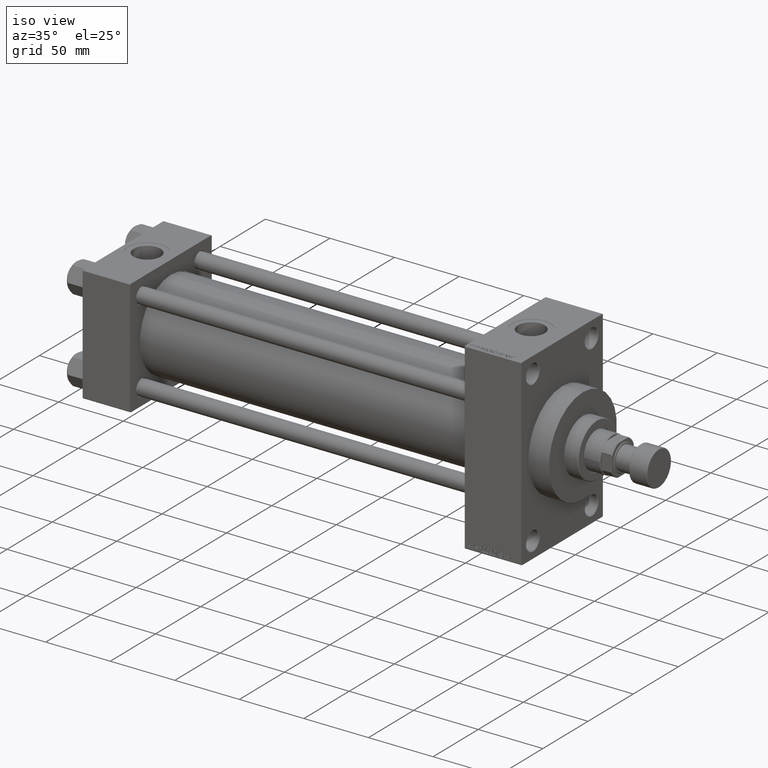
[diagram: clean part render]
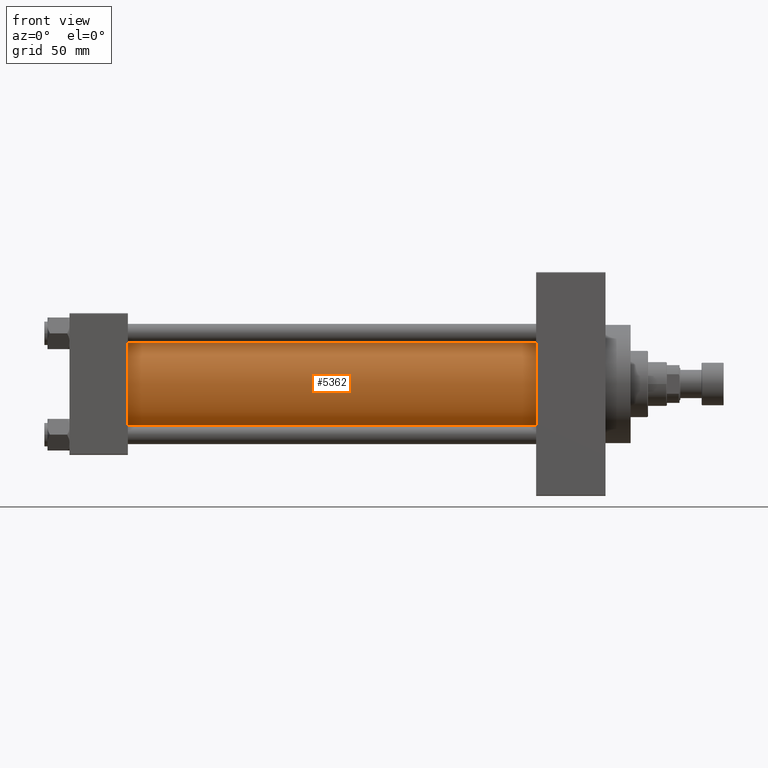
[diagram: tour spotlight — one face highlighted and labeled with its STEP entity id]
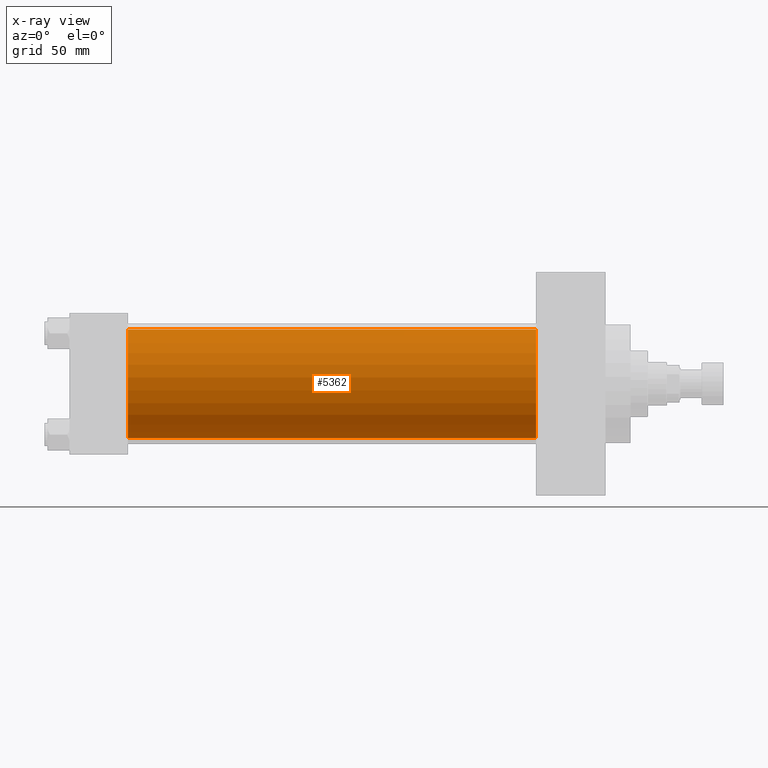
[diagram: x-ray of the same camera — body ghosted, this tour face saturated]
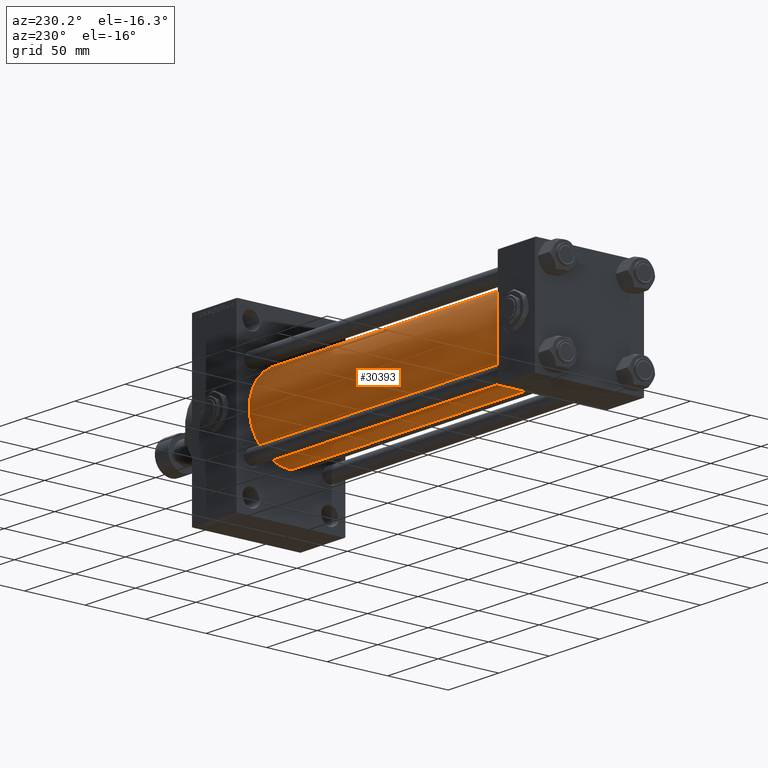
[diagram: tour spotlight — one face highlighted and labeled with its STEP entity id]
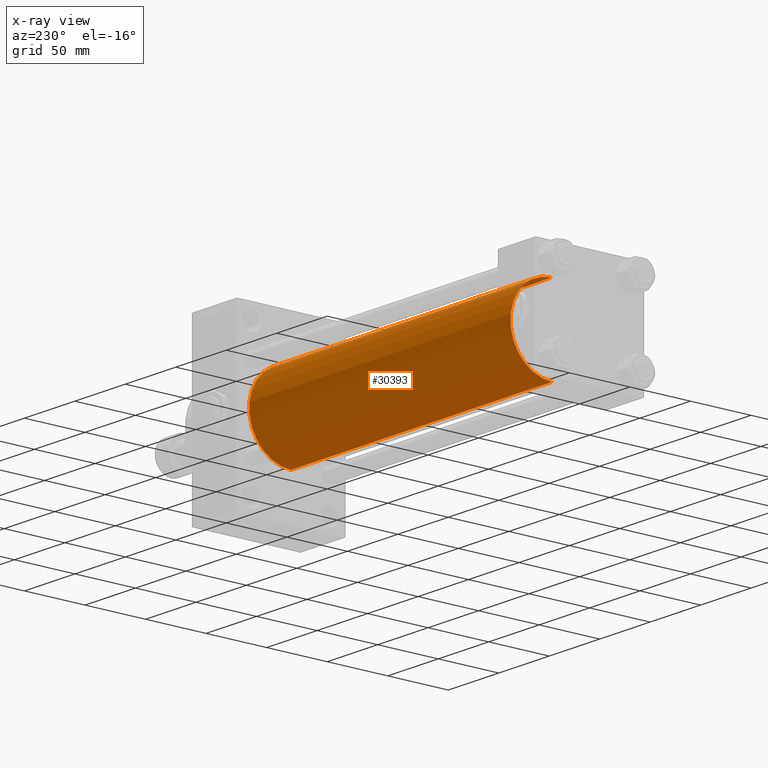
[diagram: x-ray of the same camera — body ghosted, this tour face saturated]
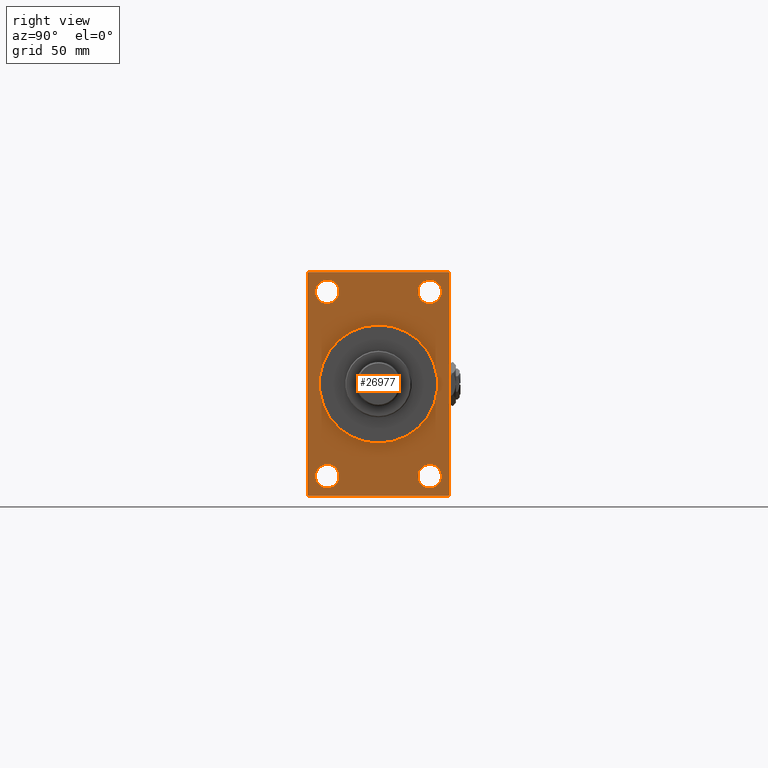
[diagram: tour spotlight — one face highlighted and labeled with its STEP entity id]
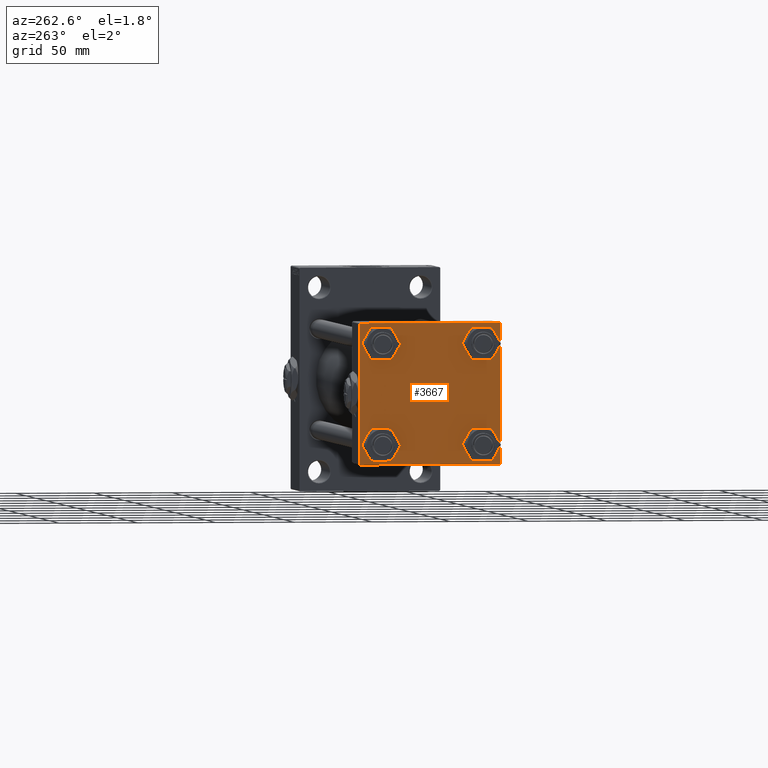
[diagram: tour spotlight — one face highlighted and labeled with its STEP entity id]
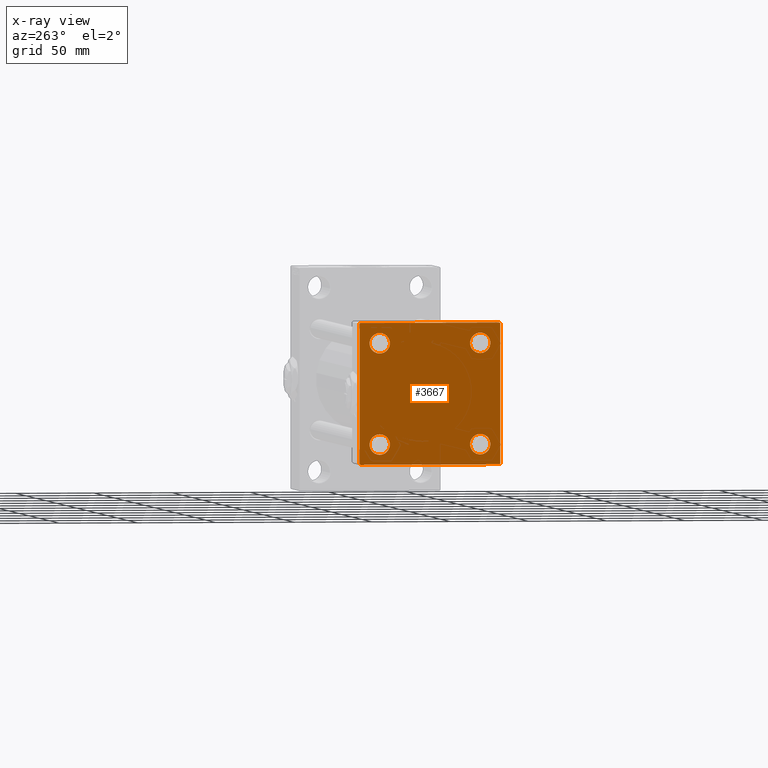
[diagram: x-ray of the same camera — body ghosted, this tour face saturated]
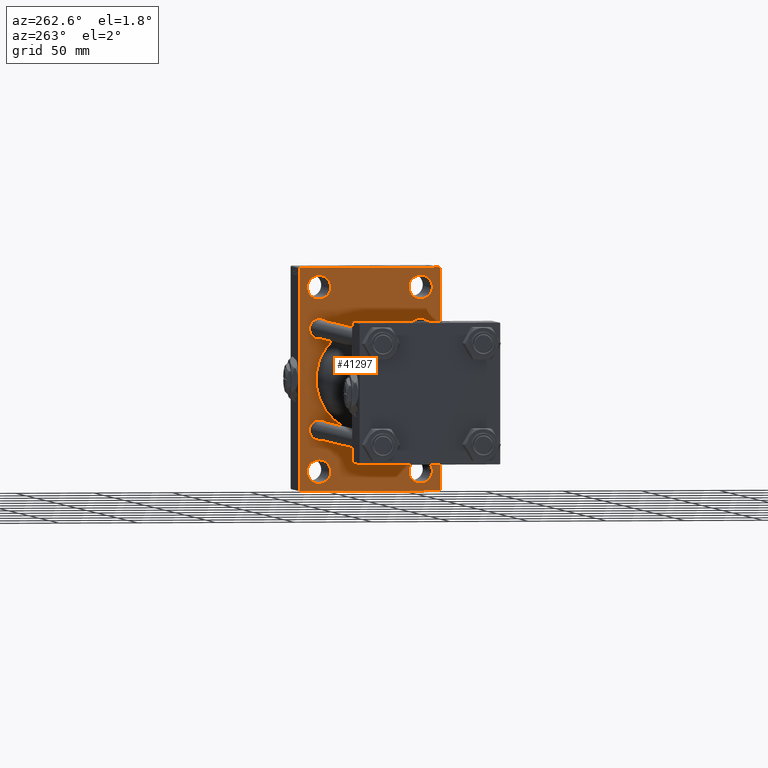
[diagram: tour spotlight — one face highlighted and labeled with its STEP entity id]
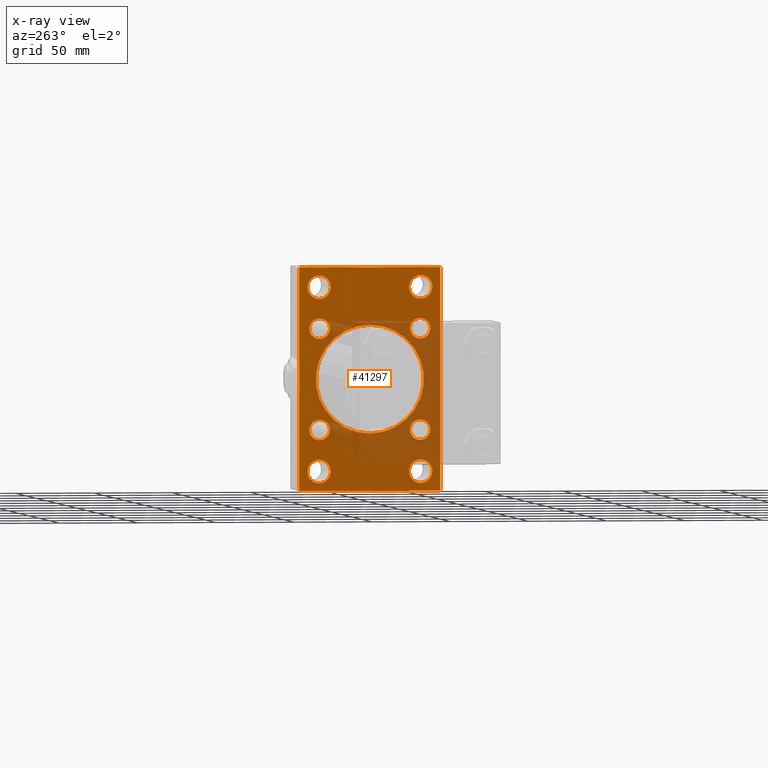
[diagram: x-ray of the same camera — body ghosted, this tour face saturated]
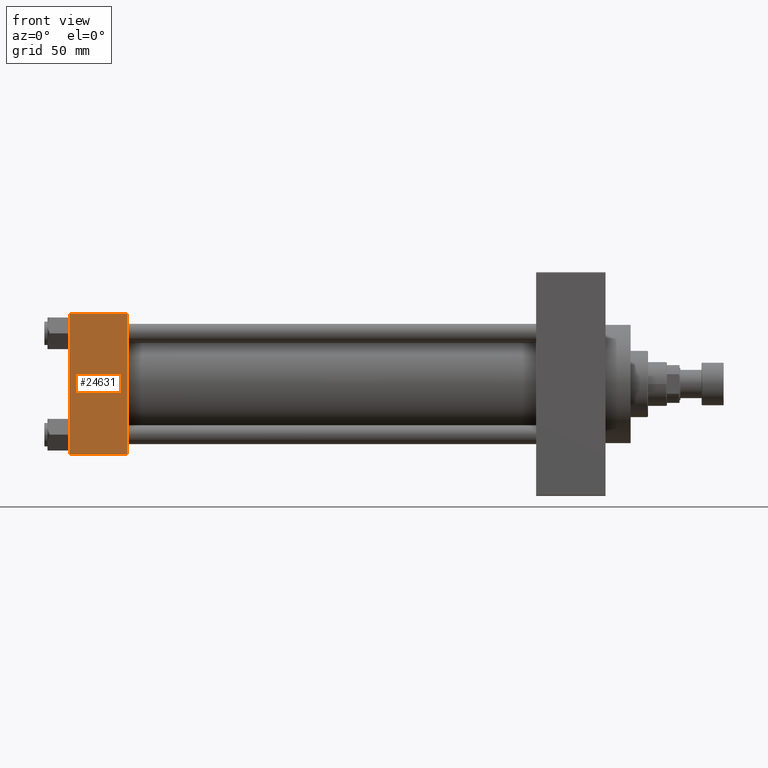
[diagram: tour spotlight — one face highlighted and labeled with its STEP entity id]
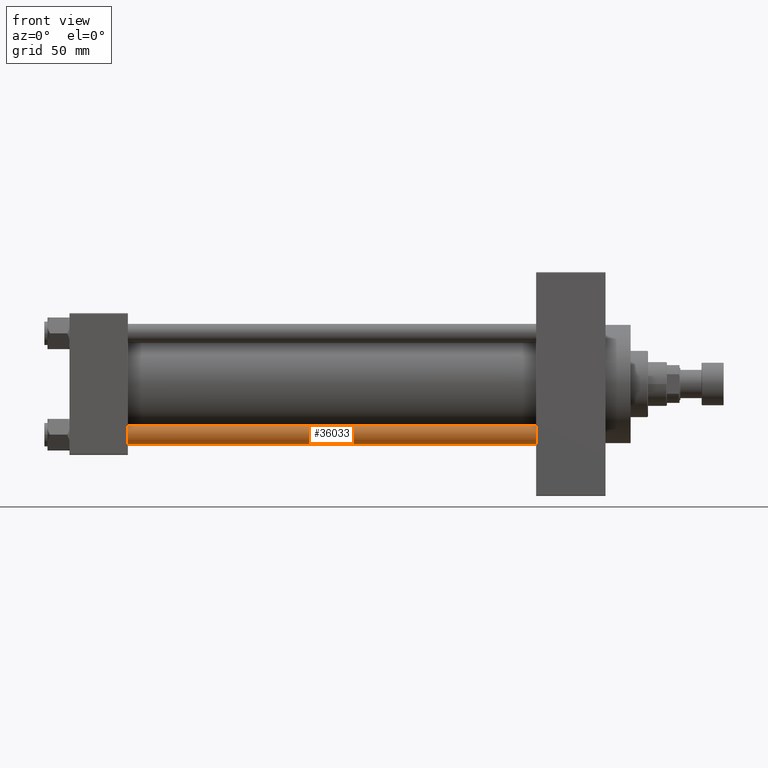
[diagram: tour spotlight — one face highlighted and labeled with its STEP entity id]
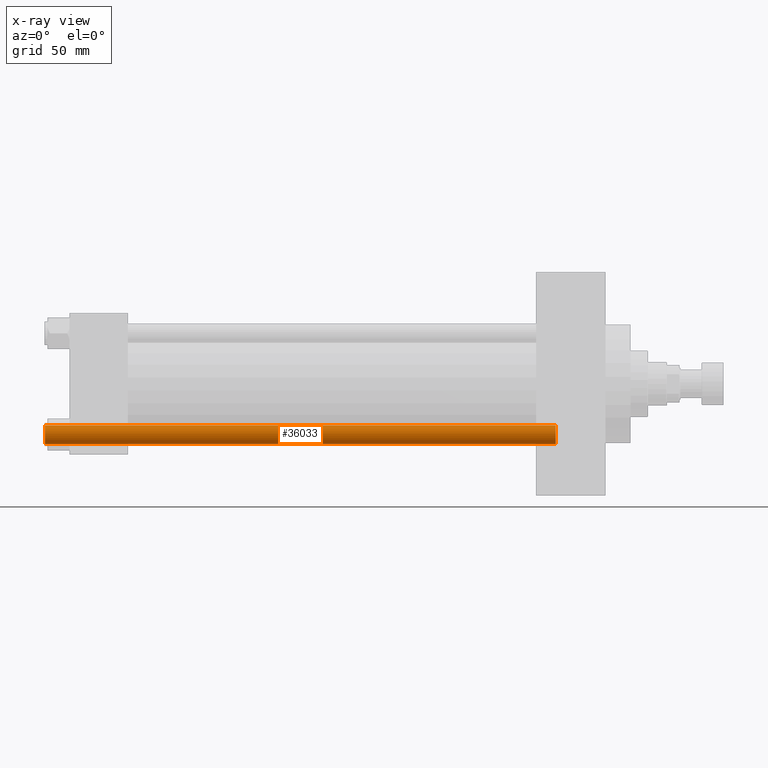
[diagram: x-ray of the same camera — body ghosted, this tour face saturated]
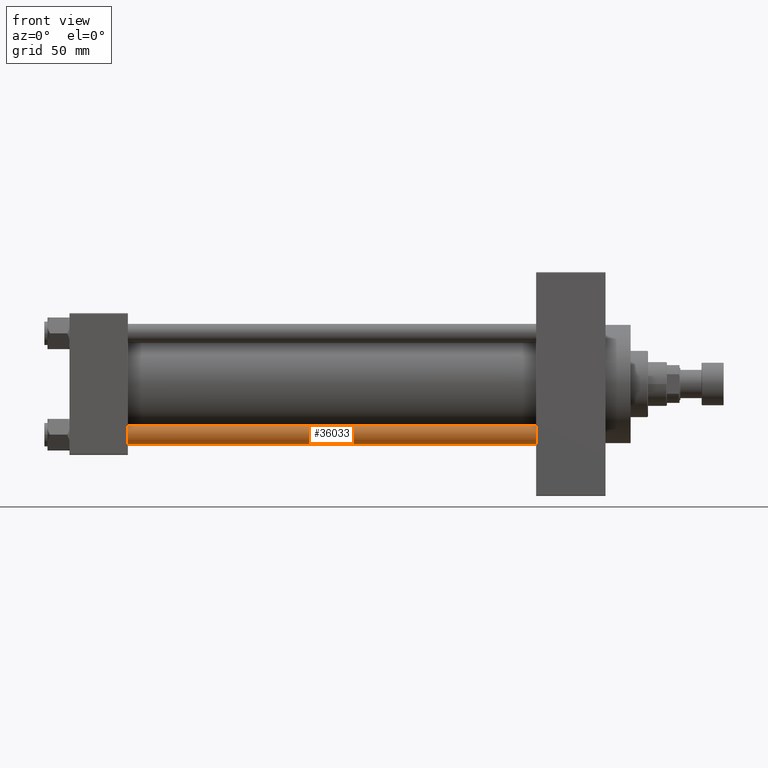
[diagram: tour spotlight — one face highlighted and labeled with its STEP entity id]
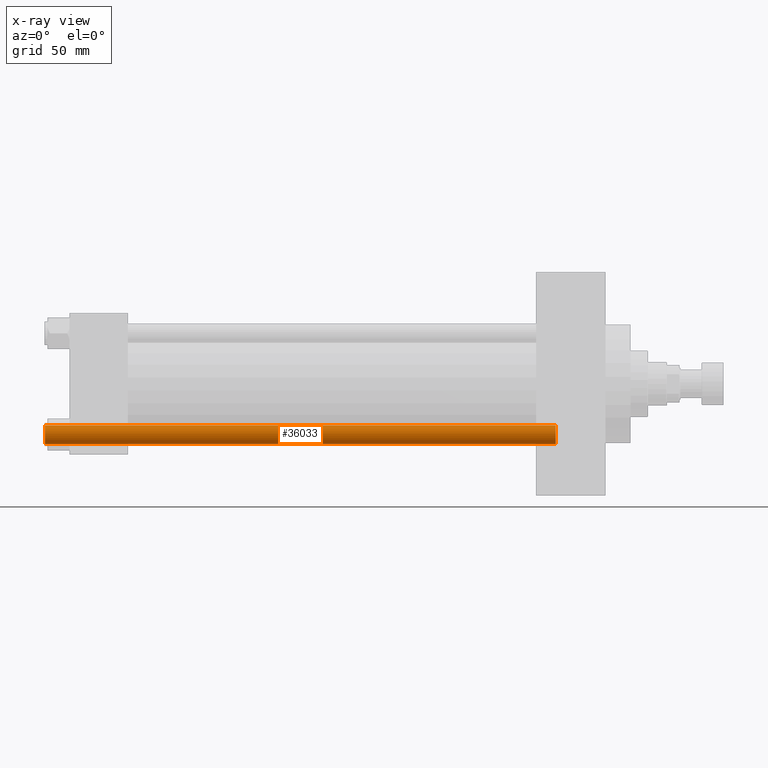
[diagram: x-ray of the same camera — body ghosted, this tour face saturated]
A machine part: a face-by-face anatomy tour. The part has 1218 B-rep faces; the first image is the clean iso view, then the 8 largest visible faces are spotlighted one at a time (largest first), each with its STEP entity span.

Face 1 — front view, entity #5362. An x-ray twin of the same camera follows (body ghosted, this face saturated) — the face is partly hidden behind the body. In plain terms, the highlighted cylindrical surface (partial cylindrical patch) has radius 34.5 mm, axis along (-1, -0, -0).
Definition (entity closure, byte-faithful):
#785 = ORIENTED_EDGE ( 'NONE', *, *, #1566, .T. ) ;
#1196 = CARTESIAN_POINT ( 'NONE',  ( 296.0000000000000000, -2.602085213965210642E-15, 0.000000000000000000 ) ) ;
#1566 = EDGE_CURVE ( 'NONE', #4455, #15364, #34774, .T. ) ;
#2628 = CARTESIAN_POINT ( 'NONE',  ( 296.0000000000000000, -2.602085213965210642E-15, 34.50000000000000000 ) ) ;
#4455 = VERTEX_POINT ( 'NONE', #2628 ) ;
#5014 = EDGE_CURVE ( 'NONE', #49189, #41675, #18937, .T. ) ;
#5362 = ADVANCED_FACE ( 'NONE', ( #8030 ), #35670, .T. ) ;
#8030 = FACE_OUTER_BOUND ( 'NONE', #39100, .T. ) ;
#8545 = CIRCLE ( 'NONE', #49490, 34.50000000000000000 ) ;
#11394 = EDGE_CURVE ( 'NONE', #15364, #41675, #8545, .T. ) ;
#13438 = CARTESIAN_POINT ( 'NONE',  ( 36.99999999999997868, -2.602085213965210642E-15, 0.000000000000000000 ) ) ;
#14189 = DIRECTION ( 'NONE',  ( 1.000000000000000000, -0.000000000000000000, 0.000000000000000000 ) ) ;
#15364 = VERTEX_POINT ( 'NONE', #38342 ) ;
#16583 = DIRECTION ( 'NONE',  ( -1.000000000000000000, -0.000000000000000000, -0.000000000000000000 ) ) ;
#18937 = LINE ( 'NONE', #49612, #33162 ) ;
#19329 = CARTESIAN_POINT ( 'NONE',  ( 36.99999999999997868, 1.622946243093158675E-15, -34.50000000000000000 ) ) ;
#20989 = ORIENTED_EDGE ( 'NONE', *, *, #5014, .F. ) ;
#21961 = AXIS2_PLACEMENT_3D ( 'NONE', #1196, #16583, #24353 ) ;
#22280 = CARTESIAN_POINT ( 'NONE',  ( 296.0000000000000000, 1.622946243093158675E-15, -34.50000000000000000 ) ) ;
#24353 = DIRECTION ( 'NONE',  ( 0.000000000000000000, 0.000000000000000000, 1.000000000000000000 ) ) ;
#25461 = DIRECTION ( 'NONE',  ( 0.000000000000000000, 0.000000000000000000, -1.000000000000000000 ) ) ;
#27350 = EDGE_CURVE ( 'NONE', #4455, #49189, #49107, .T. ) ;
#27718 = ORIENTED_EDGE ( 'NONE', *, *, #27350, .F. ) ;
#30472 = CARTESIAN_POINT ( 'NONE',  ( 296.0000000000000000, -2.602085213965210642E-15, 0.000000000000000000 ) ) ;
#33162 = VECTOR ( 'NONE', #34512, 1000.000000000000000 ) ;
#34512 = DIRECTION ( 'NONE',  ( -1.000000000000000000, -0.000000000000000000, -0.000000000000000000 ) ) ;
#34774 = LINE ( 'NONE', #39309, #35498 ) ;
#35498 = VECTOR ( 'NONE', #35527, 1000.000000000000000 ) ;
#35527 = DIRECTION ( 'NONE',  ( -1.000000000000000000, -0.000000000000000000, -0.000000000000000000 ) ) ;
#35670 = CYLINDRICAL_SURFACE ( 'NONE', #21961, 34.50000000000000000 ) ;
#38342 = CARTESIAN_POINT ( 'NONE',  ( 36.99999999999997868, -2.602085213965210642E-15, 34.50000000000000000 ) ) ;
#39100 = EDGE_LOOP ( 'NONE', ( #20989, #27718, #785, #43588 ) ) ;
#39309 = CARTESIAN_POINT ( 'NONE',  ( 296.0000000000000000, -2.602085213965210642E-15, 34.50000000000000000 ) ) ;
#40572 = DIRECTION ( 'NONE',  ( 0.000000000000000000, 0.000000000000000000, 1.000000000000000000 ) ) ;
#41037 = DIRECTION ( 'NONE',  ( 1.000000000000000000, 0.000000000000000000, 0.000000000000000000 ) ) ;
#41675 = VERTEX_POINT ( 'NONE', #19329 ) ;
#43588 = ORIENTED_EDGE ( 'NONE', *, *, #11394, .T. ) ;
#45920 = AXIS2_PLACEMENT_3D ( 'NONE', #30472, #41037, #25461 ) ;
#49107 = CIRCLE ( 'NONE', #45920, 34.50000000000000000 ) ;
#49189 = VERTEX_POINT ( 'NONE', #22280 ) ;
#49490 = AXIS2_PLACEMENT_3D ( 'NONE', #13438, #14189, #40572 ) ;
#49612 = CARTESIAN_POINT ( 'NONE',  ( 296.0000000000000000, 1.622946243093158675E-15, -34.50000000000000000 ) ) ;

Face 2 — auxiliary view, entity #30393. An x-ray twin of the same camera follows (body ghosted, this face saturated) — the face is partly hidden behind the body. In plain terms, the highlighted cylindrical surface (partial cylindrical patch) has radius 34.5 mm, axis along (-1, -0, -0).
Definition (entity closure, byte-faithful):
#1566 = EDGE_CURVE ( 'NONE', #4455, #15364, #34774, .T. ) ;
#2628 = CARTESIAN_POINT ( 'NONE',  ( 296.0000000000000000, -2.602085213965210642E-15, 34.50000000000000000 ) ) ;
#4455 = VERTEX_POINT ( 'NONE', #2628 ) ;
#5014 = EDGE_CURVE ( 'NONE', #49189, #41675, #18937, .T. ) ;
#5800 = ORIENTED_EDGE ( 'NONE', *, *, #5014, .T. ) ;
#9154 = EDGE_CURVE ( 'NONE', #49189, #4455, #17279, .T. ) ;
#10129 = ORIENTED_EDGE ( 'NONE', *, *, #9154, .F. ) ;
#13900 = CARTESIAN_POINT ( 'NONE',  ( 296.0000000000000000, -2.602085213965210642E-15, 0.000000000000000000 ) ) ;
#15364 = VERTEX_POINT ( 'NONE', #38342 ) ;
#17279 = CIRCLE ( 'NONE', #41360, 34.50000000000000000 ) ;
#17427 = FACE_OUTER_BOUND ( 'NONE', #25699, .T. ) ;
#18937 = LINE ( 'NONE', #49612, #33162 ) ;
#19329 = CARTESIAN_POINT ( 'NONE',  ( 36.99999999999997868, 1.622946243093158675E-15, -34.50000000000000000 ) ) ;
#20069 = DIRECTION ( 'NONE',  ( 0.000000000000000000, 0.000000000000000000, -1.000000000000000000 ) ) ;
#21453 = DIRECTION ( 'NONE',  ( -1.000000000000000000, -0.000000000000000000, -0.000000000000000000 ) ) ;
#22280 = CARTESIAN_POINT ( 'NONE',  ( 296.0000000000000000, 1.622946243093158675E-15, -34.50000000000000000 ) ) ;
#25634 = ORIENTED_EDGE ( 'NONE', *, *, #1566, .F. ) ;
#25699 = EDGE_LOOP ( 'NONE', ( #10129, #5800, #36732, #25634 ) ) ;
#27068 = EDGE_CURVE ( 'NONE', #41675, #15364, #48325, .T. ) ;
#27600 = CARTESIAN_POINT ( 'NONE',  ( 296.0000000000000000, -2.602085213965210642E-15, 0.000000000000000000 ) ) ;
#30393 = ADVANCED_FACE ( 'NONE', ( #17427 ), #37014, .T. ) ;
#31460 = AXIS2_PLACEMENT_3D ( 'NONE', #34803, #46381, #39094 ) ;
#32098 = DIRECTION ( 'NONE',  ( 1.000000000000000000, 0.000000000000000000, 0.000000000000000000 ) ) ;
#33162 = VECTOR ( 'NONE', #34512, 1000.000000000000000 ) ;
#34512 = DIRECTION ( 'NONE',  ( -1.000000000000000000, -0.000000000000000000, -0.000000000000000000 ) ) ;
#34774 = LINE ( 'NONE', #39309, #35498 ) ;
#34803 = CARTESIAN_POINT ( 'NONE',  ( 36.99999999999997868, -2.602085213965210642E-15, 0.000000000000000000 ) ) ;
#35498 = VECTOR ( 'NONE', #35527, 1000.000000000000000 ) ;
#35527 = DIRECTION ( 'NONE',  ( -1.000000000000000000, -0.000000000000000000, -0.000000000000000000 ) ) ;
#36732 = ORIENTED_EDGE ( 'NONE', *, *, #27068, .T. ) ;
#37014 = CYLINDRICAL_SURFACE ( 'NONE', #45090, 34.50000000000000000 ) ;
#38342 = CARTESIAN_POINT ( 'NONE',  ( 36.99999999999997868, -2.602085213965210642E-15, 34.50000000000000000 ) ) ;
#39094 = DIRECTION ( 'NONE',  ( 0.000000000000000000, 0.000000000000000000, 1.000000000000000000 ) ) ;
#39309 = CARTESIAN_POINT ( 'NONE',  ( 296.0000000000000000, -2.602085213965210642E-15, 34.50000000000000000 ) ) ;
#41360 = AXIS2_PLACEMENT_3D ( 'NONE', #27600, #32098, #20069 ) ;
#41675 = VERTEX_POINT ( 'NONE', #19329 ) ;
#44073 = DIRECTION ( 'NONE',  ( 0.000000000000000000, 0.000000000000000000, 1.000000000000000000 ) ) ;
#45090 = AXIS2_PLACEMENT_3D ( 'NONE', #13900, #21453, #44073 ) ;
#46381 = DIRECTION ( 'NONE',  ( 1.000000000000000000, -0.000000000000000000, 0.000000000000000000 ) ) ;
#48325 = CIRCLE ( 'NONE', #31460, 34.50000000000000000 ) ;
#49189 = VERTEX_POINT ( 'NONE', #22280 ) ;
#49612 = CARTESIAN_POINT ( 'NONE',  ( 296.0000000000000000, 1.622946243093158675E-15, -34.50000000000000000 ) ) ;

Face 3 — right view, entity #26977. In plain terms, the highlighted planar face has unit normal (-1, 0, 0).
Definition (entity closure, byte-faithful):
#390 = CARTESIAN_POINT ( 'NONE',  ( 339.9999999999999432, 32.50000000000000711, 66.00000000000017053 ) ) ;
#619 = AXIS2_PLACEMENT_3D ( 'NONE', #20231, #8154, #1333 ) ;
#729 = ORIENTED_EDGE ( 'NONE', *, *, #35362, .F. ) ;
#754 = CARTESIAN_POINT ( 'NONE',  ( 339.9999999999999432, 45.00000000000002132, 71.00000000000000000 ) ) ;
#1249 = CARTESIAN_POINT ( 'NONE',  ( 339.9999999999999432, 44.50000000000006395, -70.99999999999998579 ) ) ;
#1333 = DIRECTION ( 'NONE',  ( 0.000000000000000000, 0.000000000000000000, 1.000000000000000000 ) ) ;
#1583 = LINE ( 'NONE', #36812, #45991 ) ;
#1952 = LINE ( 'NONE', #44230, #36643 ) ;
#2594 = DIRECTION ( 'NONE',  ( -1.000000000000000000, 0.000000000000000000, -0.000000000000000000 ) ) ;
#2669 = DIRECTION ( 'NONE',  ( -1.000000000000000000, 0.000000000000000000, -0.000000000000000000 ) ) ;
#3363 = FACE_BOUND ( 'NONE', #49793, .T. ) ;
#3576 = CIRCLE ( 'NONE', #14008, 37.50000000000000711 ) ;
#3944 = VERTEX_POINT ( 'NONE', #31415 ) ;
#4367 = DIRECTION ( 'NONE',  ( 0.000000000000000000, -1.000000000000000000, -1.541976423090495387E-16 ) ) ;
#4507 = CIRCLE ( 'NONE', #39818, 7.500000000000180300 ) ;
#4582 = DIRECTION ( 'NONE',  ( 0.000000000000000000, 0.000000000000000000, 1.000000000000000000 ) ) ;
#4661 = AXIS2_PLACEMENT_3D ( 'NONE', #19426, #12123, #4582 ) ;
#4672 = DIRECTION ( 'NONE',  ( 0.000000000000000000, 0.000000000000000000, 1.000000000000000000 ) ) ;
#4963 = AXIS2_PLACEMENT_3D ( 'NONE', #23800, #39132, #4672 ) ;
#5402 = CARTESIAN_POINT ( 'NONE',  ( 339.9999999999999432, -44.99999999999997158, 70.99999999999998579 ) ) ;
#5703 = DIRECTION ( 'NONE',  ( 0.000000000000000000, -1.000000000000000000, -1.541976423090495633E-16 ) ) ;
#6030 = ORIENTED_EDGE ( 'NONE', *, *, #45694, .T. ) ;
#6743 = CIRCLE ( 'NONE', #32433, 7.500000000000158984 ) ;
#6916 = DIRECTION ( 'NONE',  ( 1.000000000000000000, 0.000000000000000000, 0.000000000000000000 ) ) ;
#7411 = CARTESIAN_POINT ( 'NONE',  ( 339.9999999999999432, -32.50000000000000000, 58.50000000000000711 ) ) ;
#7746 = DIRECTION ( 'NONE',  ( 1.000000000000000000, 0.000000000000000000, 0.000000000000000000 ) ) ;
#7901 = EDGE_LOOP ( 'NONE', ( #18422, #27915 ) ) ;
#8147 = EDGE_LOOP ( 'NONE', ( #40485, #9373, #48169, #48365, #729, #30849, #6030, #39343 ) ) ;
#8154 = DIRECTION ( 'NONE',  ( -1.000000000000000000, 0.000000000000000000, -0.000000000000000000 ) ) ;
#8957 = EDGE_CURVE ( 'NONE', #41076, #14475, #30123, .T. ) ;
#8981 = CIRCLE ( 'NONE', #4963, 7.500000000000158984 ) ;
#9121 = VECTOR ( 'NONE', #30952, 1000.000000000000000 ) ;
#9373 = ORIENTED_EDGE ( 'NONE', *, *, #33908, .T. ) ;
#9408 = CARTESIAN_POINT ( 'NONE',  ( 339.9999999999999432, -32.50000000000000000, -58.49999999999999289 ) ) ;
#9485 = EDGE_CURVE ( 'NONE', #48543, #14382, #47026, .T. ) ;
#9492 = CARTESIAN_POINT ( 'NONE',  ( 339.9999999999999432, -32.50000000000000000, -58.49999999999999289 ) ) ;
#9751 = CARTESIAN_POINT ( 'NONE',  ( 339.9999999999999432, 0.000000000000000000, 0.000000000000000000 ) ) ;
#10077 = CARTESIAN_POINT ( 'NONE',  ( 339.9999999999999432, -44.99999999999997158, 70.49999999999992895 ) ) ;
#10250 = ORIENTED_EDGE ( 'NONE', *, *, #36250, .T. ) ;
#10425 = CARTESIAN_POINT ( 'NONE',  ( 339.9999999999999432, 0.000000000000000000, 0.000000000000000000 ) ) ;
#10454 = CARTESIAN_POINT ( 'NONE',  ( 339.9999999999999432, 32.50000000000000711, -66.00000000000017053 ) ) ;
#10675 = FACE_BOUND ( 'NONE', #21929, .T. ) ;
#10847 = AXIS2_PLACEMENT_3D ( 'NONE', #45216, #32886, #22346 ) ;
#11173 = FACE_BOUND ( 'NONE', #20961, .T. ) ;
#11607 = VECTOR ( 'NONE', #43157, 1000.000000000000000 ) ;
#12123 = DIRECTION ( 'NONE',  ( -1.000000000000000000, 0.000000000000000000, -0.000000000000000000 ) ) ;
#12701 = CARTESIAN_POINT ( 'NONE',  ( 339.9999999999999432, 0.000000000000000000, 0.000000000000000000 ) ) ;
#13648 = DIRECTION ( 'NONE',  ( 0.000000000000000000, -0.7071067811865867636, 0.7071067811865081598 ) ) ;
#13823 = EDGE_CURVE ( 'NONE', #14382, #48543, #4507, .T. ) ;
#14008 = AXIS2_PLACEMENT_3D ( 'NONE', #9751, #6916, #25092 ) ;
#14382 = VERTEX_POINT ( 'NONE', #49647 ) ;
#14475 = VERTEX_POINT ( 'NONE', #42847 ) ;
#15119 = CIRCLE ( 'NONE', #4661, 7.500000000000173195 ) ;
#15209 = CARTESIAN_POINT ( 'NONE',  ( 339.9999999999999432, 32.50000000000000711, 50.99999999999985079 ) ) ;
#16396 = VERTEX_POINT ( 'NONE', #25987 ) ;
#17539 = LINE ( 'NONE', #17778, #18569 ) ;
#17778 = CARTESIAN_POINT ( 'NONE',  ( 339.9999999999999432, 45.00000000000001421, -70.99999999999998579 ) ) ;
#17979 = FACE_BOUND ( 'NONE', #21966, .T. ) ;
#18422 = ORIENTED_EDGE ( 'NONE', *, *, #19534, .T. ) ;
#18475 = FACE_BOUND ( 'NONE', #7901, .T. ) ;
#18569 = VECTOR ( 'NONE', #5703, 1000.000000000000000 ) ;
#18808 = CARTESIAN_POINT ( 'NONE',  ( 339.9999999999999432, -32.50000000000000000, 66.00000000000017053 ) ) ;
#19426 = CARTESIAN_POINT ( 'NONE',  ( 339.9999999999999432, 32.50000000000000711, -58.50000000000000000 ) ) ;
#19534 = EDGE_CURVE ( 'NONE', #38573, #25880, #28758, .T. ) ;
#19658 = VECTOR ( 'NONE', #4367, 1000.000000000000000 ) ;
#19839 = EDGE_CURVE ( 'NONE', #14475, #41076, #15119, .T. ) ;
#19910 = LINE ( 'NONE', #754, #9121 ) ;
#20231 = CARTESIAN_POINT ( 'NONE',  ( 339.9999999999999432, 32.50000000000000711, 58.50000000000000711 ) ) ;
#20498 = AXIS2_PLACEMENT_3D ( 'NONE', #9408, #44604, #36304 ) ;
#20585 = AXIS2_PLACEMENT_3D ( 'NONE', #12701, #7746, #41932 ) ;
#20754 = LINE ( 'NONE', #5402, #11607 ) ;
#20874 = EDGE_CURVE ( 'NONE', #38265, #16396, #47564, .T. ) ;
#20961 = EDGE_LOOP ( 'NONE', ( #45752, #32344 ) ) ;
#21110 = VERTEX_POINT ( 'NONE', #42757 ) ;
#21192 = ORIENTED_EDGE ( 'NONE', *, *, #13823, .T. ) ;
#21929 = EDGE_LOOP ( 'NONE', ( #26911, #40899 ) ) ;
#21966 = EDGE_LOOP ( 'NONE', ( #10250, #31902 ) ) ;
#22346 = DIRECTION ( 'NONE',  ( 0.000000000000000000, 0.000000000000000000, 1.000000000000000000 ) ) ;
#23115 = EDGE_CURVE ( 'NONE', #47274, #21110, #41756, .T. ) ;
#23141 = CARTESIAN_POINT ( 'NONE',  ( 339.9999999999999432, -44.99999999999997158, -70.50000000000000000 ) ) ;
#23271 = DIRECTION ( 'NONE',  ( -1.000000000000000000, 0.000000000000000000, -0.000000000000000000 ) ) ;
#23800 = CARTESIAN_POINT ( 'NONE',  ( 339.9999999999999432, 32.50000000000000711, 58.50000000000000711 ) ) ;
#24917 = DIRECTION ( 'NONE',  ( -0.000000000000000000, -0.7071067811865426878, -0.7071067811865524577 ) ) ;
#25092 = DIRECTION ( 'NONE',  ( 0.000000000000000000, 0.000000000000000000, -1.000000000000000000 ) ) ;
#25194 = CARTESIAN_POINT ( 'NONE',  ( 339.9999999999999432, 45.00000000000002132, 70.50000000000000000 ) ) ;
#25642 = EDGE_CURVE ( 'NONE', #28539, #26898, #17539, .T. ) ;
#25880 = VERTEX_POINT ( 'NONE', #390 ) ;
#25987 = CARTESIAN_POINT ( 'NONE',  ( 339.9999999999999432, -44.99999999999997158, 70.49999999999992895 ) ) ;
#26265 = PLANE ( 'NONE',  #28219 ) ;
#26497 = AXIS2_PLACEMENT_3D ( 'NONE', #7411, #23271, #35074 ) ;
#26898 = VERTEX_POINT ( 'NONE', #36103 ) ;
#26911 = ORIENTED_EDGE ( 'NONE', *, *, #40106, .F. ) ;
#26977 = ADVANCED_FACE ( 'NONE', ( #17979, #3363, #11173, #18475, #10675, #41097 ), #26265, .F. ) ;
#27915 = ORIENTED_EDGE ( 'NONE', *, *, #31261, .T. ) ;
#28219 = AXIS2_PLACEMENT_3D ( 'NONE', #10425, #37827, #37586 ) ;
#28539 = VERTEX_POINT ( 'NONE', #1249 ) ;
#28758 = CIRCLE ( 'NONE', #619, 7.500000000000158984 ) ;
#29433 = VERTEX_POINT ( 'NONE', #25194 ) ;
#29955 = CARTESIAN_POINT ( 'NONE',  ( 339.9999999999999432, 44.49999999999996447, 71.00000000000000000 ) ) ;
#30123 = CIRCLE ( 'NONE', #10847, 7.500000000000173195 ) ;
#30849 = ORIENTED_EDGE ( 'NONE', *, *, #33089, .T. ) ;
#30952 = DIRECTION ( 'NONE',  ( 0.000000000000000000, -4.886545002751570165E-17, -1.000000000000000000 ) ) ;
#31261 = EDGE_CURVE ( 'NONE', #25880, #38573, #8981, .T. ) ;
#31415 = CARTESIAN_POINT ( 'NONE',  ( 339.9999999999999432, 44.49999999999996447, 71.00000000000000000 ) ) ;
#31902 = ORIENTED_EDGE ( 'NONE', *, *, #23115, .T. ) ;
#31996 = VECTOR ( 'NONE', #24917, 1000.000000000000000 ) ;
#32261 = CARTESIAN_POINT ( 'NONE',  ( 339.9999999999999432, 0.000000000000000000, 37.50000000000000711 ) ) ;
#32344 = ORIENTED_EDGE ( 'NONE', *, *, #19839, .T. ) ;
#32433 = AXIS2_PLACEMENT_3D ( 'NONE', #40592, #2594, #33283 ) ;
#32505 = CARTESIAN_POINT ( 'NONE',  ( 339.9999999999999432, -32.50000000000000000, -66.00000000000015632 ) ) ;
#32886 = DIRECTION ( 'NONE',  ( -1.000000000000000000, 0.000000000000000000, -0.000000000000000000 ) ) ;
#33089 = EDGE_CURVE ( 'NONE', #29433, #3944, #44316, .T. ) ;
#33283 = DIRECTION ( 'NONE',  ( 0.000000000000000000, 0.000000000000000000, 1.000000000000000000 ) ) ;
#33499 = ORIENTED_EDGE ( 'NONE', *, *, #9485, .T. ) ;
#33908 = EDGE_CURVE ( 'NONE', #47995, #26898, #1583, .T. ) ;
#35074 = DIRECTION ( 'NONE',  ( 0.000000000000000000, 0.000000000000000000, 1.000000000000000000 ) ) ;
#35362 = EDGE_CURVE ( 'NONE', #29433, #44386, #19910, .T. ) ;
#35799 = CARTESIAN_POINT ( 'NONE',  ( 339.9999999999999432, 45.00000000000002132, 71.00000000000000000 ) ) ;
#36097 = EDGE_CURVE ( 'NONE', #16396, #47995, #20754, .T. ) ;
#36103 = CARTESIAN_POINT ( 'NONE',  ( 339.9999999999999432, -44.49999999999994316, -71.00000000000000000 ) ) ;
#36250 = EDGE_CURVE ( 'NONE', #21110, #47274, #6743, .T. ) ;
#36304 = DIRECTION ( 'NONE',  ( 0.000000000000000000, 0.000000000000000000, 1.000000000000000000 ) ) ;
#36643 = VECTOR ( 'NONE', #36690, 1000.000000000000114 ) ;
#36690 = DIRECTION ( 'NONE',  ( -0.000000000000000000, 0.7071067811864985009, 0.7071067811865965336 ) ) ;
#36812 = CARTESIAN_POINT ( 'NONE',  ( 339.9999999999999432, -44.49999999999997158, -71.00000000000000000 ) ) ;
#37407 = CIRCLE ( 'NONE', #20585, 37.50000000000000711 ) ;
#37586 = DIRECTION ( 'NONE',  ( -0.000000000000000000, 0.000000000000000000, 1.000000000000000000 ) ) ;
#37639 = CARTESIAN_POINT ( 'NONE',  ( 339.9999999999999432, -44.49999999999989342, 70.99999999999998579 ) ) ;
#37827 = DIRECTION ( 'NONE',  ( -1.000000000000000000, 0.000000000000000000, -0.000000000000000000 ) ) ;
#38265 = VERTEX_POINT ( 'NONE', #37639 ) ;
#38573 = VERTEX_POINT ( 'NONE', #15209 ) ;
#39132 = DIRECTION ( 'NONE',  ( -1.000000000000000000, 0.000000000000000000, -0.000000000000000000 ) ) ;
#39334 = LINE ( 'NONE', #35799, #19658 ) ;
#39343 = ORIENTED_EDGE ( 'NONE', *, *, #20874, .T. ) ;
#39818 = AXIS2_PLACEMENT_3D ( 'NONE', #9492, #2669, #44189 ) ;
#40106 = EDGE_CURVE ( 'NONE', #46558, #41792, #37407, .T. ) ;
#40485 = ORIENTED_EDGE ( 'NONE', *, *, #36097, .T. ) ;
#40578 = DIRECTION ( 'NONE',  ( 0.000000000000000000, 0.7071067811865573427, -0.7071067811865378028 ) ) ;
#40592 = CARTESIAN_POINT ( 'NONE',  ( 339.9999999999999432, -32.50000000000000000, 58.50000000000000711 ) ) ;
#40899 = ORIENTED_EDGE ( 'NONE', *, *, #46315, .F. ) ;
#41076 = VERTEX_POINT ( 'NONE', #10454 ) ;
#41097 = FACE_OUTER_BOUND ( 'NONE', #8147, .T. ) ;
#41513 = EDGE_CURVE ( 'NONE', #28539, #44386, #1952, .T. ) ;
#41756 = CIRCLE ( 'NONE', #26497, 7.500000000000158984 ) ;
#41792 = VERTEX_POINT ( 'NONE', #43208 ) ;
#41932 = DIRECTION ( 'NONE',  ( 0.000000000000000000, 0.000000000000000000, -1.000000000000000000 ) ) ;
#42757 = CARTESIAN_POINT ( 'NONE',  ( 339.9999999999999432, -32.50000000000000000, 50.99999999999985079 ) ) ;
#42847 = CARTESIAN_POINT ( 'NONE',  ( 339.9999999999999432, 32.50000000000000711, -50.99999999999982236 ) ) ;
#43157 = DIRECTION ( 'NONE',  ( 0.000000000000000000, 0.000000000000000000, -1.000000000000000000 ) ) ;
#43208 = CARTESIAN_POINT ( 'NONE',  ( 339.9999999999999432, 4.592425496802575156E-15, -37.50000000000000711 ) ) ;
#44189 = DIRECTION ( 'NONE',  ( 0.000000000000000000, 0.000000000000000000, 1.000000000000000000 ) ) ;
#44230 = CARTESIAN_POINT ( 'NONE',  ( 339.9999999999999432, 45.00000000000001421, -70.49999999999997158 ) ) ;
#44316 = LINE ( 'NONE', #29955, #46827 ) ;
#44386 = VERTEX_POINT ( 'NONE', #48507 ) ;
#44604 = DIRECTION ( 'NONE',  ( -1.000000000000000000, 0.000000000000000000, -0.000000000000000000 ) ) ;
#45216 = CARTESIAN_POINT ( 'NONE',  ( 339.9999999999999432, 32.50000000000000711, -58.50000000000000000 ) ) ;
#45694 = EDGE_CURVE ( 'NONE', #3944, #38265, #39334, .T. ) ;
#45752 = ORIENTED_EDGE ( 'NONE', *, *, #8957, .T. ) ;
#45991 = VECTOR ( 'NONE', #40578, 1000.000000000000000 ) ;
#46315 = EDGE_CURVE ( 'NONE', #41792, #46558, #3576, .T. ) ;
#46558 = VERTEX_POINT ( 'NONE', #32261 ) ;
#46827 = VECTOR ( 'NONE', #13648, 1000.000000000000000 ) ;
#47026 = CIRCLE ( 'NONE', #20498, 7.500000000000180300 ) ;
#47274 = VERTEX_POINT ( 'NONE', #18808 ) ;
#47564 = LINE ( 'NONE', #10077, #31996 ) ;
#47995 = VERTEX_POINT ( 'NONE', #23141 ) ;
#48169 = ORIENTED_EDGE ( 'NONE', *, *, #25642, .F. ) ;
#48365 = ORIENTED_EDGE ( 'NONE', *, *, #41513, .T. ) ;
#48507 = CARTESIAN_POINT ( 'NONE',  ( 339.9999999999999432, 45.00000000000001421, -70.49999999999997158 ) ) ;
#48543 = VERTEX_POINT ( 'NONE', #32505 ) ;
#49647 = CARTESIAN_POINT ( 'NONE',  ( 339.9999999999999432, -32.50000000000000000, -50.99999999999981526 ) ) ;
#49793 = EDGE_LOOP ( 'NONE', ( #33499, #21192 ) ) ;

Face 4 — auxiliary view, entity #3667. An x-ray twin of the same camera follows (body ghosted, this face saturated) — the face is partly hidden behind the body. In plain terms, the highlighted planar face has unit normal (-1, 0, 0).
Definition (entity closure, byte-faithful):
#837 = PLANE ( 'NONE',  #46011 ) ;
#851 = EDGE_LOOP ( 'NONE', ( #49782, #30934 ) ) ;
#972 = VERTEX_POINT ( 'NONE', #35894 ) ;
#1133 = CIRCLE ( 'NONE', #11574, 6.500000000000019540 ) ;
#1335 = FACE_BOUND ( 'NONE', #851, .T. ) ;
#1982 = DIRECTION ( 'NONE',  ( 1.000000000000000000, -0.000000000000000000, 0.000000000000000000 ) ) ;
#2259 = ORIENTED_EDGE ( 'NONE', *, *, #27180, .F. ) ;
#2756 = DIRECTION ( 'NONE',  ( 1.000000000000000000, -0.000000000000000000, 0.000000000000000000 ) ) ;
#2849 = EDGE_CURVE ( 'NONE', #27129, #4587, #42788, .T. ) ;
#2851 = CARTESIAN_POINT ( 'NONE',  ( 0.000000000000000000, 44.99999999999998579, -44.99999999999998579 ) ) ;
#2850 = CARTESIAN_POINT ( 'NONE',  ( 0.000000000000000000, 32.14999999999999147, -32.15000000000000568 ) ) ;
#3301 = VERTEX_POINT ( 'NONE', #49470 ) ;
#3377 = AXIS2_PLACEMENT_3D ( 'NONE', #47790, #1982, #47304 ) ;
#3467 = CARTESIAN_POINT ( 'NONE',  ( 0.000000000000000000, 32.14999999999999147, -25.65000000000002700 ) ) ;
#3667 = ADVANCED_FACE ( 'NONE', ( #18994, #34314, #1335, #12686, #4374 ), #837, .T. ) ;
#3700 = CARTESIAN_POINT ( 'NONE',  ( 0.000000000000000000, 32.14999999999999147, -38.64999999999998437 ) ) ;
#3892 = AXIS2_PLACEMENT_3D ( 'NONE', #9486, #39434, #46984 ) ;
#4373 = ORIENTED_EDGE ( 'NONE', *, *, #36880, .F. ) ;
#4374 = FACE_OUTER_BOUND ( 'NONE', #38542, .T. ) ;
#4587 = VERTEX_POINT ( 'NONE', #21532 ) ;
#4877 = DIRECTION ( 'NONE',  ( -1.000000000000000000, 0.000000000000000000, -0.000000000000000000 ) ) ;
#5602 = VERTEX_POINT ( 'NONE', #43171 ) ;
#6372 = CARTESIAN_POINT ( 'NONE',  ( 0.000000000000000000, 44.99999999999998579, 44.50000000000001421 ) ) ;
#6865 = CIRCLE ( 'NONE', #32552, 6.499999999999977796 ) ;
#7014 = CARTESIAN_POINT ( 'NONE',  ( 0.000000000000000000, -45.00000000000000000, -44.49999999999995737 ) ) ;
#7076 = LINE ( 'NONE', #19408, #20271 ) ;
#7423 = DIRECTION ( 'NONE',  ( 1.000000000000000000, -0.000000000000000000, 0.000000000000000000 ) ) ;
#8112 = VERTEX_POINT ( 'NONE', #3700 ) ;
#8454 = EDGE_CURVE ( 'NONE', #43794, #10069, #21768, .T. ) ;
#8658 = LINE ( 'NONE', #46125, #36260 ) ;
#8663 = DIRECTION ( 'NONE',  ( -0.000000000000000000, 0.000000000000000000, 1.000000000000000000 ) ) ;
#8741 = DIRECTION ( 'NONE',  ( 0.000000000000000000, -0.7071067811865474617, 0.7071067811865474617 ) ) ;
#9445 = EDGE_LOOP ( 'NONE', ( #32735, #23255 ) ) ;
#9486 = CARTESIAN_POINT ( 'NONE',  ( 0.000000000000000000, 32.14999999999999147, -32.15000000000000568 ) ) ;
#9543 = DIRECTION ( 'NONE',  ( 0.000000000000000000, -1.000000000000000000, -1.541976423090495387E-16 ) ) ;
#10069 = VERTEX_POINT ( 'NONE', #11721 ) ;
#10264 = LINE ( 'NONE', #34640, #38161 ) ;
#10581 = EDGE_CURVE ( 'NONE', #20996, #5602, #6865, .T. ) ;
#10793 = ORIENTED_EDGE ( 'NONE', *, *, #8454, .T. ) ;
#10955 = DIRECTION ( 'NONE',  ( 0.000000000000000000, 0.000000000000000000, 1.000000000000000000 ) ) ;
#11574 = AXIS2_PLACEMENT_3D ( 'NONE', #32541, #47905, #16753 ) ;
#11590 = EDGE_CURVE ( 'NONE', #28288, #972, #37425, .T. ) ;
#11721 = CARTESIAN_POINT ( 'NONE',  ( 0.000000000000000000, 44.99999999999998579, -44.49999999999995737 ) ) ;
#11734 = VERTEX_POINT ( 'NONE', #39059 ) ;
#12210 = CARTESIAN_POINT ( 'NONE',  ( 0.000000000000000000, -44.49999999999995737, 45.00000000000000000 ) ) ;
#12459 = VECTOR ( 'NONE', #21272, 1000.000000000000000 ) ;
#12686 = FACE_BOUND ( 'NONE', #25848, .T. ) ;
#12744 = CIRCLE ( 'NONE', #3892, 6.499999999999977796 ) ;
#13951 = DIRECTION ( 'NONE',  ( 0.000000000000000000, -1.000000000000000000, -1.541976423090495633E-16 ) ) ;
#14668 = DIRECTION ( 'NONE',  ( 1.000000000000000000, -0.000000000000000000, 0.000000000000000000 ) ) ;
#15109 = EDGE_CURVE ( 'NONE', #4587, #27129, #28611, .T. ) ;
#15159 = ORIENTED_EDGE ( 'NONE', *, *, #47335, .T. ) ;
#15769 = AXIS2_PLACEMENT_3D ( 'NONE', #34013, #14668, #49620 ) ;
#15976 = CARTESIAN_POINT ( 'NONE',  ( 0.000000000000000000, -32.14999999999997726, -38.64999999999999147 ) ) ;
#16753 = DIRECTION ( 'NONE',  ( 0.000000000000000000, 0.000000000000000000, 1.000000000000000000 ) ) ;
#17039 = DIRECTION ( 'NONE',  ( 0.000000000000000000, 0.000000000000000000, 1.000000000000000000 ) ) ;
#17428 = EDGE_CURVE ( 'NONE', #8112, #34613, #12744, .T. ) ;
#18369 = ORIENTED_EDGE ( 'NONE', *, *, #15109, .T. ) ;
#18853 = AXIS2_PLACEMENT_3D ( 'NONE', #2850, #48886, #17039 ) ;
#18994 = FACE_BOUND ( 'NONE', #9445, .T. ) ;
#19408 = CARTESIAN_POINT ( 'NONE',  ( 0.000000000000000000, 44.74999999999998579, -44.74999999999998579 ) ) ;
#19592 = ORIENTED_EDGE ( 'NONE', *, *, #39789, .T. ) ;
#19602 = EDGE_CURVE ( 'NONE', #11734, #43794, #47369, .T. ) ;
#19663 = CIRCLE ( 'NONE', #18853, 6.499999999999977796 ) ;
#20227 = DIRECTION ( 'NONE',  ( 0.000000000000000000, 7.709882115452476934E-17, -1.000000000000000000 ) ) ;
#20271 = VECTOR ( 'NONE', #34233, 1000.000000000000114 ) ;
#20400 = CARTESIAN_POINT ( 'NONE',  ( 0.000000000000000000, -45.00000000000000711, 44.49999999999997158 ) ) ;
#20537 = CARTESIAN_POINT ( 'NONE',  ( 0.000000000000000000, -32.14999999999997726, -32.15000000000001279 ) ) ;
#20740 = VECTOR ( 'NONE', #39097, 1000.000000000000114 ) ;
#20996 = VERTEX_POINT ( 'NONE', #29919 ) ;
#21272 = DIRECTION ( 'NONE',  ( 0.000000000000000000, 0.000000000000000000, -1.000000000000000000 ) ) ;
#21532 = CARTESIAN_POINT ( 'NONE',  ( 0.000000000000000000, -32.14999999999997726, -25.65000000000003411 ) ) ;
#21751 = VERTEX_POINT ( 'NONE', #35770 ) ;
#21768 = LINE ( 'NONE', #37095, #12459 ) ;
#22245 = LINE ( 'NONE', #2851, #45119 ) ;
#22364 = ORIENTED_EDGE ( 'NONE', *, *, #32085, .T. ) ;
#23255 = ORIENTED_EDGE ( 'NONE', *, *, #36140, .T. ) ;
#23574 = DIRECTION ( 'NONE',  ( 1.000000000000000000, -0.000000000000000000, 0.000000000000000000 ) ) ;
#25848 = EDGE_LOOP ( 'NONE', ( #34633, #39938 ) ) ;
#25899 = CARTESIAN_POINT ( 'NONE',  ( 0.000000000000000000, 32.14999999999999147, 32.15000000000000568 ) ) ;
#26535 = CARTESIAN_POINT ( 'NONE',  ( 0.000000000000000000, 32.14999999999999147, 32.15000000000000568 ) ) ;
#26654 = LINE ( 'NONE', #45771, #48641 ) ;
#27129 = VERTEX_POINT ( 'NONE', #15976 ) ;
#27180 = EDGE_CURVE ( 'NONE', #37721, #36596, #8658, .T. ) ;
#27752 = AXIS2_PLACEMENT_3D ( 'NONE', #26535, #7423, #10955 ) ;
#28243 = CARTESIAN_POINT ( 'NONE',  ( 0.000000000000000000, 44.74999999999999289, 44.74999999999999289 ) ) ;
#28288 = VERTEX_POINT ( 'NONE', #33719 ) ;
#28611 = CIRCLE ( 'NONE', #37450, 6.499999999999977796 ) ;
#29177 = DIRECTION ( 'NONE',  ( 0.000000000000000000, 0.000000000000000000, 1.000000000000000000 ) ) ;
#29521 = EDGE_LOOP ( 'NONE', ( #18369, #42033 ) ) ;
#29919 = CARTESIAN_POINT ( 'NONE',  ( 0.000000000000000000, 32.14999999999999147, 25.65000000000002700 ) ) ;
#30826 = ORIENTED_EDGE ( 'NONE', *, *, #19602, .T. ) ;
#30934 = ORIENTED_EDGE ( 'NONE', *, *, #17428, .T. ) ;
#32085 = EDGE_CURVE ( 'NONE', #21751, #3301, #22245, .T. ) ;
#32383 = EDGE_CURVE ( 'NONE', #10069, #21751, #7076, .T. ) ;
#32541 = CARTESIAN_POINT ( 'NONE',  ( 0.000000000000000000, -32.14999999999997726, 32.15000000000001279 ) ) ;
#32552 = AXIS2_PLACEMENT_3D ( 'NONE', #25899, #2756, #29177 ) ;
#32735 = ORIENTED_EDGE ( 'NONE', *, *, #11590, .T. ) ;
#33719 = CARTESIAN_POINT ( 'NONE',  ( 0.000000000000000000, -32.14999999999997726, 38.65000000000003411 ) ) ;
#34013 = CARTESIAN_POINT ( 'NONE',  ( 0.000000000000000000, -32.14999999999997726, 32.15000000000001279 ) ) ;
#34233 = DIRECTION ( 'NONE',  ( -0.000000000000000000, -0.7071067811865474617, -0.7071067811865474617 ) ) ;
#34314 = FACE_BOUND ( 'NONE', #29521, .T. ) ;
#34613 = VERTEX_POINT ( 'NONE', #3467 ) ;
#34633 = ORIENTED_EDGE ( 'NONE', *, *, #47765, .T. ) ;
#34640 = CARTESIAN_POINT ( 'NONE',  ( 0.000000000000000000, -44.74999999999998579, -44.74999999999998579 ) ) ;
#34696 = DIRECTION ( 'NONE',  ( -0.000000000000000000, 0.7071067811865425767, 0.7071067811865524577 ) ) ;
#35770 = CARTESIAN_POINT ( 'NONE',  ( 0.000000000000000000, 44.49999999999998579, -44.99999999999998579 ) ) ;
#35894 = CARTESIAN_POINT ( 'NONE',  ( 0.000000000000000000, -32.14999999999997726, 25.64999999999999147 ) ) ;
#35966 = LINE ( 'NONE', #48264, #49318 ) ;
#36140 = EDGE_CURVE ( 'NONE', #972, #28288, #1133, .T. ) ;
#36260 = VECTOR ( 'NONE', #20227, 1000.000000000000000 ) ;
#36596 = VERTEX_POINT ( 'NONE', #7014 ) ;
#36777 = VERTEX_POINT ( 'NONE', #12210 ) ;
#36880 = EDGE_CURVE ( 'NONE', #11734, #36777, #35966, .T. ) ;
#37095 = CARTESIAN_POINT ( 'NONE',  ( 0.000000000000000000, 44.99999999999998579, 45.00000000000001421 ) ) ;
#37281 = EDGE_CURVE ( 'NONE', #34613, #8112, #19663, .T. ) ;
#37365 = CIRCLE ( 'NONE', #27752, 6.499999999999977796 ) ;
#37425 = CIRCLE ( 'NONE', #15769, 6.500000000000019540 ) ;
#37450 = AXIS2_PLACEMENT_3D ( 'NONE', #20537, #23574, #39394 ) ;
#37721 = VERTEX_POINT ( 'NONE', #20400 ) ;
#38161 = VECTOR ( 'NONE', #8741, 1000.000000000000114 ) ;
#38542 = EDGE_LOOP ( 'NONE', ( #10793, #43497, #22364, #15159, #2259, #19592, #4373, #30826 ) ) ;
#39059 = CARTESIAN_POINT ( 'NONE',  ( 0.000000000000000000, 44.49999999999998579, 45.00000000000001421 ) ) ;
#39097 = DIRECTION ( 'NONE',  ( 0.000000000000000000, 0.7071067811865474617, -0.7071067811865474617 ) ) ;
#39394 = DIRECTION ( 'NONE',  ( 0.000000000000000000, 0.000000000000000000, 1.000000000000000000 ) ) ;
#39434 = DIRECTION ( 'NONE',  ( 1.000000000000000000, -0.000000000000000000, 0.000000000000000000 ) ) ;
#39789 = EDGE_CURVE ( 'NONE', #37721, #36777, #26654, .T. ) ;
#39938 = ORIENTED_EDGE ( 'NONE', *, *, #10581, .T. ) ;
#42033 = ORIENTED_EDGE ( 'NONE', *, *, #2849, .T. ) ;
#42788 = CIRCLE ( 'NONE', #3377, 6.499999999999977796 ) ;
#43171 = CARTESIAN_POINT ( 'NONE',  ( 0.000000000000000000, 32.14999999999999147, 38.64999999999999147 ) ) ;
#43497 = ORIENTED_EDGE ( 'NONE', *, *, #32383, .T. ) ;
#43794 = VERTEX_POINT ( 'NONE', #6372 ) ;
#45119 = VECTOR ( 'NONE', #13951, 1000.000000000000000 ) ;
#45771 = CARTESIAN_POINT ( 'NONE',  ( -0.000000000000000000, -44.75000000000029843, 44.74999999999967315 ) ) ;
#46011 = AXIS2_PLACEMENT_3D ( 'NONE', #47134, #4877, #8663 ) ;
#46125 = CARTESIAN_POINT ( 'NONE',  ( 0.000000000000000000, -45.00000000000000711, 45.00000000000000000 ) ) ;
#46984 = DIRECTION ( 'NONE',  ( 0.000000000000000000, 0.000000000000000000, 1.000000000000000000 ) ) ;
#47134 = CARTESIAN_POINT ( 'NONE',  ( 0.000000000000000000, 0.000000000000000000, 0.000000000000000000 ) ) ;
#47304 = DIRECTION ( 'NONE',  ( 0.000000000000000000, 0.000000000000000000, 1.000000000000000000 ) ) ;
#47335 = EDGE_CURVE ( 'NONE', #3301, #36596, #10264, .T. ) ;
#47369 = LINE ( 'NONE', #28243, #20740 ) ;
#47765 = EDGE_CURVE ( 'NONE', #5602, #20996, #37365, .T. ) ;
#47790 = CARTESIAN_POINT ( 'NONE',  ( 0.000000000000000000, -32.14999999999997726, -32.15000000000001279 ) ) ;
#47905 = DIRECTION ( 'NONE',  ( 1.000000000000000000, -0.000000000000000000, 0.000000000000000000 ) ) ;
#48264 = CARTESIAN_POINT ( 'NONE',  ( 0.000000000000000000, 44.99999999999998579, 45.00000000000001421 ) ) ;
#48641 = VECTOR ( 'NONE', #34696, 1000.000000000000114 ) ;
#48886 = DIRECTION ( 'NONE',  ( 1.000000000000000000, -0.000000000000000000, 0.000000000000000000 ) ) ;
#49318 = VECTOR ( 'NONE', #9543, 1000.000000000000000 ) ;
#49470 = CARTESIAN_POINT ( 'NONE',  ( 0.000000000000000000, -44.49999999999995737, -45.00000000000000000 ) ) ;
#49620 = DIRECTION ( 'NONE',  ( 0.000000000000000000, 0.000000000000000000, 1.000000000000000000 ) ) ;
#49782 = ORIENTED_EDGE ( 'NONE', *, *, #37281, .T. ) ;

Face 5 — auxiliary view, entity #41297. An x-ray twin of the same camera follows (body ghosted, this face saturated) — the face is partly hidden behind the body. In plain terms, the highlighted planar face has unit normal (-1, 0, 0).
Definition (entity closure, byte-faithful):
#78 = ORIENTED_EDGE ( 'NONE', *, *, #35270, .T. ) ;
#254 = CARTESIAN_POINT ( 'NONE',  ( 296.0000000000000000, 45.00000000000001421, -70.99999999999998579 ) ) ;
#585 = VERTEX_POINT ( 'NONE', #16615 ) ;
#864 = FACE_BOUND ( 'NONE', #27769, .T. ) ;
#1369 = VERTEX_POINT ( 'NONE', #45844 ) ;
#1725 = VECTOR ( 'NONE', #45488, 1000.000000000000000 ) ;
#1843 = VERTEX_POINT ( 'NONE', #38496 ) ;
#1957 = ORIENTED_EDGE ( 'NONE', *, *, #44988, .T. ) ;
#2106 = DIRECTION ( 'NONE',  ( 0.000000000000000000, -0.7071067811865573427, 0.7071067811865378028 ) ) ;
#2628 = CARTESIAN_POINT ( 'NONE',  ( 296.0000000000000000, -2.602085213965210642E-15, 34.50000000000000000 ) ) ;
#2813 = CIRCLE ( 'NONE', #49388, 6.500000000000005329 ) ;
#3236 = VERTEX_POINT ( 'NONE', #28848 ) ;
#3245 = EDGE_CURVE ( 'NONE', #24675, #44456, #44353, .T. ) ;
#3539 = AXIS2_PLACEMENT_3D ( 'NONE', #35922, #31893, #16824 ) ;
#3559 = EDGE_LOOP ( 'NONE', ( #26744, #29205 ) ) ;
#3776 = ORIENTED_EDGE ( 'NONE', *, *, #36189, .T. ) ;
#3868 = EDGE_LOOP ( 'NONE', ( #15707, #3776 ) ) ;
#4158 = CARTESIAN_POINT ( 'NONE',  ( 296.0000000000000000, 44.50000000000006395, -70.99999999999998579 ) ) ;
#4159 = DIRECTION ( 'NONE',  ( 0.000000000000000000, 0.000000000000000000, 1.000000000000000000 ) ) ;
#4247 = CARTESIAN_POINT ( 'NONE',  ( 296.0000000000000000, -32.14999999999997726, 32.15000000000001279 ) ) ;
#4411 = AXIS2_PLACEMENT_3D ( 'NONE', #24144, #27657, #16610 ) ;
#4455 = VERTEX_POINT ( 'NONE', #2628 ) ;
#4665 = FACE_BOUND ( 'NONE', #8664, .T. ) ;
#4710 = ORIENTED_EDGE ( 'NONE', *, *, #9154, .T. ) ;
#4798 = DIRECTION ( 'NONE',  ( 1.000000000000000000, -0.000000000000000000, 0.000000000000000000 ) ) ;
#4902 = FACE_OUTER_BOUND ( 'NONE', #41846, .T. ) ;
#4929 = EDGE_LOOP ( 'NONE', ( #40540, #33971 ) ) ;
#5428 = VECTOR ( 'NONE', #26630, 1000.000000000000000 ) ;
#5461 = AXIS2_PLACEMENT_3D ( 'NONE', #19991, #20717, #29228 ) ;
#5591 = DIRECTION ( 'NONE',  ( 1.000000000000000000, -0.000000000000000000, 0.000000000000000000 ) ) ;
#5628 = FACE_BOUND ( 'NONE', #36108, .T. ) ;
#6207 = CARTESIAN_POINT ( 'NONE',  ( 296.0000000000000000, 32.14999999999999147, -32.15000000000000568 ) ) ;
#6338 = DIRECTION ( 'NONE',  ( 0.000000000000000000, 0.000000000000000000, 1.000000000000000000 ) ) ;
#6374 = PLANE ( 'NONE',  #30219 ) ;
#7610 = CIRCLE ( 'NONE', #4411, 6.499999999999999112 ) ;
#7951 = CARTESIAN_POINT ( 'NONE',  ( 296.0000000000000000, -32.14999999999997726, -32.15000000000001279 ) ) ;
#8664 = EDGE_LOOP ( 'NONE', ( #48795, #17901 ) ) ;
#9154 = EDGE_CURVE ( 'NONE', #49189, #4455, #17279, .T. ) ;
#9367 = DIRECTION ( 'NONE',  ( 0.000000000000000000, 0.000000000000000000, 1.000000000000000000 ) ) ;
#9377 = CARTESIAN_POINT ( 'NONE',  ( 296.0000000000000000, -32.50000000000000000, -58.49999999999999289 ) ) ;
#9609 = CARTESIAN_POINT ( 'NONE',  ( 296.0000000000000000, 32.50000000000000711, 51.00000000000000711 ) ) ;
#9655 = CARTESIAN_POINT ( 'NONE',  ( 296.0000000000000000, 0.000000000000000000, 0.000000000000000000 ) ) ;
#10408 = DIRECTION ( 'NONE',  ( 1.000000000000000000, -0.000000000000000000, 0.000000000000000000 ) ) ;
#10627 = VERTEX_POINT ( 'NONE', #18376 ) ;
#11065 = ORIENTED_EDGE ( 'NONE', *, *, #37667, .T. ) ;
#11266 = CARTESIAN_POINT ( 'NONE',  ( 296.0000000000000000, 32.50000000000000711, -66.00000000000000000 ) ) ;
#11290 = CARTESIAN_POINT ( 'NONE',  ( 296.0000000000000000, 45.00000000000002132, 71.00000000000000000 ) ) ;
#11524 = VERTEX_POINT ( 'NONE', #28508 ) ;
#11822 = EDGE_LOOP ( 'NONE', ( #17776, #21076 ) ) ;
#12071 = ORIENTED_EDGE ( 'NONE', *, *, #19519, .T. ) ;
#12189 = AXIS2_PLACEMENT_3D ( 'NONE', #24425, #20664, #16657 ) ;
#13484 = CIRCLE ( 'NONE', #5461, 7.500000000000007105 ) ;
#13784 = DIRECTION ( 'NONE',  ( 0.000000000000000000, 0.000000000000000000, 1.000000000000000000 ) ) ;
#13800 = CIRCLE ( 'NONE', #31494, 7.500000000000007105 ) ;
#14708 = DIRECTION ( 'NONE',  ( 1.000000000000000000, -0.000000000000000000, 0.000000000000000000 ) ) ;
#15132 = DIRECTION ( 'NONE',  ( -0.000000000000000000, 0.000000000000000000, 1.000000000000000000 ) ) ;
#15607 = VECTOR ( 'NONE', #34475, 1000.000000000000114 ) ;
#15707 = ORIENTED_EDGE ( 'NONE', *, *, #38190, .T. ) ;
#15811 = ORIENTED_EDGE ( 'NONE', *, *, #28579, .T. ) ;
#16138 = LINE ( 'NONE', #254, #49285 ) ;
#16159 = VERTEX_POINT ( 'NONE', #9609 ) ;
#16301 = DIRECTION ( 'NONE',  ( 0.000000000000000000, 0.000000000000000000, 1.000000000000000000 ) ) ;
#16397 = CIRCLE ( 'NONE', #3539, 6.500000000000005329 ) ;
#16610 = DIRECTION ( 'NONE',  ( 0.000000000000000000, 0.000000000000000000, 1.000000000000000000 ) ) ;
#16615 = CARTESIAN_POINT ( 'NONE',  ( 296.0000000000000000, 32.14999999999999147, 38.65000000000001279 ) ) ;
#16657 = DIRECTION ( 'NONE',  ( 0.000000000000000000, 0.000000000000000000, 1.000000000000000000 ) ) ;
#16681 = EDGE_CURVE ( 'NONE', #49479, #16159, #38413, .T. ) ;
#16824 = DIRECTION ( 'NONE',  ( 0.000000000000000000, 0.000000000000000000, 1.000000000000000000 ) ) ;
#17028 = CIRCLE ( 'NONE', #35483, 7.500000000000013323 ) ;
#17279 = CIRCLE ( 'NONE', #41360, 34.50000000000000000 ) ;
#17383 = VERTEX_POINT ( 'NONE', #43695 ) ;
#17776 = ORIENTED_EDGE ( 'NONE', *, *, #24039, .T. ) ;
#17901 = ORIENTED_EDGE ( 'NONE', *, *, #31773, .T. ) ;
#17988 = AXIS2_PLACEMENT_3D ( 'NONE', #36826, #10408, #44371 ) ;
#17999 = DIRECTION ( 'NONE',  ( 0.000000000000000000, 0.7071067811865867636, -0.7071067811865081598 ) ) ;
#18087 = EDGE_CURVE ( 'NONE', #46796, #10627, #22876, .T. ) ;
#18341 = AXIS2_PLACEMENT_3D ( 'NONE', #47348, #28222, #9367 ) ;
#18376 = CARTESIAN_POINT ( 'NONE',  ( 296.0000000000000000, -44.49999999999989342, 70.99999999999998579 ) ) ;
#19060 = ORIENTED_EDGE ( 'NONE', *, *, #29133, .T. ) ;
#19519 = EDGE_CURVE ( 'NONE', #45697, #3236, #47229, .T. ) ;
#19523 = CIRCLE ( 'NONE', #37044, 7.500000000000013323 ) ;
#19622 = EDGE_CURVE ( 'NONE', #16159, #49479, #13484, .T. ) ;
#19664 = EDGE_LOOP ( 'NONE', ( #22630, #42110 ) ) ;
#19915 = VERTEX_POINT ( 'NONE', #29168 ) ;
#19991 = CARTESIAN_POINT ( 'NONE',  ( 296.0000000000000000, 32.50000000000000711, 58.50000000000000711 ) ) ;
#20019 = FACE_BOUND ( 'NONE', #3559, .T. ) ;
#20069 = DIRECTION ( 'NONE',  ( 0.000000000000000000, 0.000000000000000000, -1.000000000000000000 ) ) ;
#20079 = CARTESIAN_POINT ( 'NONE',  ( 296.0000000000000000, 32.50000000000000711, -50.99999999999999289 ) ) ;
#20303 = VERTEX_POINT ( 'NONE', #30040 ) ;
#20468 = CARTESIAN_POINT ( 'NONE',  ( 296.0000000000000000, -32.50000000000000000, 66.00000000000001421 ) ) ;
#20664 = DIRECTION ( 'NONE',  ( 1.000000000000000000, -0.000000000000000000, 0.000000000000000000 ) ) ;
#20717 = DIRECTION ( 'NONE',  ( 1.000000000000000000, -0.000000000000000000, 0.000000000000000000 ) ) ;
#20816 = DIRECTION ( 'NONE',  ( 0.000000000000000000, 0.000000000000000000, 1.000000000000000000 ) ) ;
#20977 = FACE_BOUND ( 'NONE', #4929, .T. ) ;
#21076 = ORIENTED_EDGE ( 'NONE', *, *, #31107, .T. ) ;
#21506 = LINE ( 'NONE', #28776, #38750 ) ;
#21536 = LINE ( 'NONE', #33574, #46240 ) ;
#21718 = CARTESIAN_POINT ( 'NONE',  ( 296.0000000000000000, 32.50000000000000711, 66.00000000000001421 ) ) ;
#22280 = CARTESIAN_POINT ( 'NONE',  ( 296.0000000000000000, 1.622946243093158675E-15, -34.50000000000000000 ) ) ;
#22542 = DIRECTION ( 'NONE',  ( 0.000000000000000000, 0.000000000000000000, 1.000000000000000000 ) ) ;
#22630 = ORIENTED_EDGE ( 'NONE', *, *, #16681, .T. ) ;
#22666 = CARTESIAN_POINT ( 'NONE',  ( 296.0000000000000000, 57.75000000000311218, -57.74999999999509726 ) ) ;
#22876 = LINE ( 'NONE', #11290, #5428 ) ;
#23471 = VECTOR ( 'NONE', #44748, 1000.000000000000000 ) ;
#23955 = AXIS2_PLACEMENT_3D ( 'NONE', #49146, #14708, #35806 ) ;
#24039 = EDGE_CURVE ( 'NONE', #41502, #17383, #30515, .T. ) ;
#24129 = ORIENTED_EDGE ( 'NONE', *, *, #28733, .T. ) ;
#24144 = CARTESIAN_POINT ( 'NONE',  ( 296.0000000000000000, 32.14999999999999147, 32.15000000000000568 ) ) ;
#24159 = CARTESIAN_POINT ( 'NONE',  ( 296.0000000000000000, -32.14999999999997726, -25.65000000000000568 ) ) ;
#24425 = CARTESIAN_POINT ( 'NONE',  ( 296.0000000000000000, 32.50000000000000711, -58.50000000000000000 ) ) ;
#24675 = VERTEX_POINT ( 'NONE', #11266 ) ;
#25254 = AXIS2_PLACEMENT_3D ( 'NONE', #28170, #47057, #27198 ) ;
#25461 = DIRECTION ( 'NONE',  ( 0.000000000000000000, 0.000000000000000000, -1.000000000000000000 ) ) ;
#25583 = DIRECTION ( 'NONE',  ( 1.000000000000000000, -0.000000000000000000, 0.000000000000000000 ) ) ;
#25720 = ORIENTED_EDGE ( 'NONE', *, *, #47481, .F. ) ;
#25915 = CIRCLE ( 'NONE', #32334, 6.500000000000005329 ) ;
#26630 = DIRECTION ( 'NONE',  ( 0.000000000000000000, -1.000000000000000000, -1.541976423090495387E-16 ) ) ;
#26744 = ORIENTED_EDGE ( 'NONE', *, *, #38941, .T. ) ;
#26850 = CARTESIAN_POINT ( 'NONE',  ( 296.0000000000000000, -44.99999999999997158, 70.99999999999998579 ) ) ;
#27198 = DIRECTION ( 'NONE',  ( 0.000000000000000000, 0.000000000000000000, 1.000000000000000000 ) ) ;
#27350 = EDGE_CURVE ( 'NONE', #4455, #49189, #49107, .T. ) ;
#27444 = CIRCLE ( 'NONE', #12189, 7.500000000000007105 ) ;
#27598 = CARTESIAN_POINT ( 'NONE',  ( 296.0000000000000000, -32.14999999999997726, -32.15000000000001279 ) ) ;
#27600 = CARTESIAN_POINT ( 'NONE',  ( 296.0000000000000000, -2.602085213965210642E-15, 0.000000000000000000 ) ) ;
#27642 = EDGE_CURVE ( 'NONE', #44456, #24675, #27444, .T. ) ;
#27657 = DIRECTION ( 'NONE',  ( 1.000000000000000000, -0.000000000000000000, 0.000000000000000000 ) ) ;
#27769 = EDGE_LOOP ( 'NONE', ( #11065, #32444 ) ) ;
#27795 = FACE_BOUND ( 'NONE', #36510, .T. ) ;
#28170 = CARTESIAN_POINT ( 'NONE',  ( 296.0000000000000000, 32.14999999999999147, 32.15000000000000568 ) ) ;
#28222 = DIRECTION ( 'NONE',  ( 1.000000000000000000, -0.000000000000000000, 0.000000000000000000 ) ) ;
#28508 = CARTESIAN_POINT ( 'NONE',  ( 296.0000000000000000, -32.50000000000000000, -66.00000000000000000 ) ) ;
#28579 = EDGE_CURVE ( 'NONE', #20303, #10627, #36700, .T. ) ;
#28733 = EDGE_CURVE ( 'NONE', #48395, #30235, #41957, .T. ) ;
#28776 = CARTESIAN_POINT ( 'NONE',  ( 296.0000000000000000, -57.74999999999937472, -57.75000000000096634 ) ) ;
#28848 = CARTESIAN_POINT ( 'NONE',  ( 296.0000000000000000, -32.50000000000000000, 51.00000000000000711 ) ) ;
#29098 = CARTESIAN_POINT ( 'NONE',  ( 296.0000000000000000, 32.50000000000000711, -58.50000000000000000 ) ) ;
#29133 = EDGE_CURVE ( 'NONE', #48587, #1843, #21506, .T. ) ;
#29168 = CARTESIAN_POINT ( 'NONE',  ( 296.0000000000000000, -32.14999999999997726, 25.65000000000000213 ) ) ;
#29205 = ORIENTED_EDGE ( 'NONE', *, *, #45164, .T. ) ;
#29228 = DIRECTION ( 'NONE',  ( 0.000000000000000000, 0.000000000000000000, 1.000000000000000000 ) ) ;
#29791 = VERTEX_POINT ( 'NONE', #44440 ) ;
#30040 = CARTESIAN_POINT ( 'NONE',  ( 296.0000000000000000, -44.99999999999997158, 70.49999999999992895 ) ) ;
#30219 = AXIS2_PLACEMENT_3D ( 'NONE', #9655, #41755, #15132 ) ;
#30235 = VERTEX_POINT ( 'NONE', #30276 ) ;
#30276 = CARTESIAN_POINT ( 'NONE',  ( 296.0000000000000000, 45.00000000000001421, -70.49999999999997158 ) ) ;
#30472 = CARTESIAN_POINT ( 'NONE',  ( 296.0000000000000000, -2.602085213965210642E-15, 0.000000000000000000 ) ) ;
#30499 = EDGE_CURVE ( 'NONE', #29791, #11524, #19523, .T. ) ;
#30515 = CIRCLE ( 'NONE', #32902, 6.500000000000005329 ) ;
#30534 = ORIENTED_EDGE ( 'NONE', *, *, #31666, .T. ) ;
#30610 = LINE ( 'NONE', #26850, #30949 ) ;
#30949 = VECTOR ( 'NONE', #42192, 1000.000000000000000 ) ;
#31107 = EDGE_CURVE ( 'NONE', #17383, #41502, #25915, .T. ) ;
#31312 = FACE_BOUND ( 'NONE', #19664, .T. ) ;
#31448 = DIRECTION ( 'NONE',  ( 0.000000000000000000, 0.000000000000000000, 1.000000000000000000 ) ) ;
#31480 = ORIENTED_EDGE ( 'NONE', *, *, #27350, .T. ) ;
#31494 = AXIS2_PLACEMENT_3D ( 'NONE', #39494, #4798, #31448 ) ;
#31558 = FACE_BOUND ( 'NONE', #3868, .T. ) ;
#31647 = DIRECTION ( 'NONE',  ( 1.000000000000000000, -0.000000000000000000, 0.000000000000000000 ) ) ;
#31666 = EDGE_CURVE ( 'NONE', #3236, #45697, #13800, .T. ) ;
#31773 = EDGE_CURVE ( 'NONE', #11524, #29791, #17028, .T. ) ;
#31893 = DIRECTION ( 'NONE',  ( 1.000000000000000000, -0.000000000000000000, 0.000000000000000000 ) ) ;
#31937 = CARTESIAN_POINT ( 'NONE',  ( 296.0000000000000000, 32.14999999999999147, -25.64999999999999858 ) ) ;
#32098 = DIRECTION ( 'NONE',  ( 1.000000000000000000, 0.000000000000000000, 0.000000000000000000 ) ) ;
#32334 = AXIS2_PLACEMENT_3D ( 'NONE', #7951, #34846, #4159 ) ;
#32444 = ORIENTED_EDGE ( 'NONE', *, *, #47101, .T. ) ;
#32902 = AXIS2_PLACEMENT_3D ( 'NONE', #27598, #42944, #16301 ) ;
#33574 = CARTESIAN_POINT ( 'NONE',  ( 296.0000000000000000, 57.74999999999750599, 57.75000000000390799 ) ) ;
#33837 = CARTESIAN_POINT ( 'NONE',  ( 296.0000000000000000, -32.50000000000000000, -58.49999999999999289 ) ) ;
#33971 = ORIENTED_EDGE ( 'NONE', *, *, #3245, .T. ) ;
#34375 = CARTESIAN_POINT ( 'NONE',  ( 296.0000000000000000, 32.14999999999999147, 25.65000000000000213 ) ) ;
#34475 = DIRECTION ( 'NONE',  ( -0.000000000000000000, -0.7071067811864985009, -0.7071067811865965336 ) ) ;
#34846 = DIRECTION ( 'NONE',  ( 1.000000000000000000, -0.000000000000000000, 0.000000000000000000 ) ) ;
#34937 = CIRCLE ( 'NONE', #41336, 6.500000000000005329 ) ;
#35270 = EDGE_CURVE ( 'NONE', #42060, #48587, #16138, .T. ) ;
#35274 = VERTEX_POINT ( 'NONE', #31937 ) ;
#35318 = VERTEX_POINT ( 'NONE', #43027 ) ;
#35483 = AXIS2_PLACEMENT_3D ( 'NONE', #33837, #49184, #22542 ) ;
#35806 = DIRECTION ( 'NONE',  ( 0.000000000000000000, 0.000000000000000000, 1.000000000000000000 ) ) ;
#35922 = CARTESIAN_POINT ( 'NONE',  ( 296.0000000000000000, -32.14999999999997726, 32.15000000000001279 ) ) ;
#36108 = EDGE_LOOP ( 'NONE', ( #12071, #30534 ) ) ;
#36189 = EDGE_CURVE ( 'NONE', #35318, #35274, #39667, .T. ) ;
#36510 = EDGE_LOOP ( 'NONE', ( #31480, #4710 ) ) ;
#36645 = DIRECTION ( 'NONE',  ( 1.000000000000000000, -0.000000000000000000, 0.000000000000000000 ) ) ;
#36700 = LINE ( 'NONE', #40464, #23471 ) ;
#36826 = CARTESIAN_POINT ( 'NONE',  ( 296.0000000000000000, 32.14999999999999147, -32.15000000000000568 ) ) ;
#37044 = AXIS2_PLACEMENT_3D ( 'NONE', #9377, #5591, #6338 ) ;
#37667 = EDGE_CURVE ( 'NONE', #585, #39090, #42952, .T. ) ;
#37824 = ORIENTED_EDGE ( 'NONE', *, *, #49193, .T. ) ;
#38190 = EDGE_CURVE ( 'NONE', #35274, #35318, #34937, .T. ) ;
#38413 = CIRCLE ( 'NONE', #18341, 7.500000000000007105 ) ;
#38496 = CARTESIAN_POINT ( 'NONE',  ( 296.0000000000000000, -44.99999999999997158, -70.50000000000000000 ) ) ;
#38750 = VECTOR ( 'NONE', #2106, 1000.000000000000000 ) ;
#38941 = EDGE_CURVE ( 'NONE', #1369, #19915, #2813, .T. ) ;
#39047 = CARTESIAN_POINT ( 'NONE',  ( 296.0000000000000000, 44.49999999999996447, 71.00000000000000000 ) ) ;
#39090 = VERTEX_POINT ( 'NONE', #34375 ) ;
#39494 = CARTESIAN_POINT ( 'NONE',  ( 296.0000000000000000, -32.50000000000000000, 58.50000000000000711 ) ) ;
#39667 = CIRCLE ( 'NONE', #17988, 6.500000000000005329 ) ;
#40464 = CARTESIAN_POINT ( 'NONE',  ( 296.0000000000000000, -57.75000000000024869, 57.74999999999944578 ) ) ;
#40540 = ORIENTED_EDGE ( 'NONE', *, *, #27642, .T. ) ;
#41037 = DIRECTION ( 'NONE',  ( 1.000000000000000000, 0.000000000000000000, 0.000000000000000000 ) ) ;
#41297 = ADVANCED_FACE ( 'NONE', ( #5628, #4665, #20977, #31312, #20019, #864, #31558, #46907, #27795, #4902 ), #6374, .T. ) ;
#41336 = AXIS2_PLACEMENT_3D ( 'NONE', #6207, #36645, #20816 ) ;
#41360 = AXIS2_PLACEMENT_3D ( 'NONE', #27600, #32098, #20069 ) ;
#41502 = VERTEX_POINT ( 'NONE', #24159 ) ;
#41755 = DIRECTION ( 'NONE',  ( -1.000000000000000000, 0.000000000000000000, -0.000000000000000000 ) ) ;
#41846 = EDGE_LOOP ( 'NONE', ( #78, #19060, #25720, #15811, #46050, #37824, #24129, #1957 ) ) ;
#41957 = LINE ( 'NONE', #42468, #1725 ) ;
#42060 = VERTEX_POINT ( 'NONE', #4158 ) ;
#42110 = ORIENTED_EDGE ( 'NONE', *, *, #19622, .T. ) ;
#42192 = DIRECTION ( 'NONE',  ( 0.000000000000000000, 0.000000000000000000, -1.000000000000000000 ) ) ;
#42284 = DIRECTION ( 'NONE',  ( 0.000000000000000000, -1.000000000000000000, -1.541976423090495633E-16 ) ) ;
#42468 = CARTESIAN_POINT ( 'NONE',  ( 296.0000000000000000, 45.00000000000002132, 71.00000000000000000 ) ) ;
#42944 = DIRECTION ( 'NONE',  ( 1.000000000000000000, -0.000000000000000000, 0.000000000000000000 ) ) ;
#42952 = CIRCLE ( 'NONE', #25254, 6.499999999999999112 ) ;
#43027 = CARTESIAN_POINT ( 'NONE',  ( 296.0000000000000000, 32.14999999999999147, -38.65000000000001279 ) ) ;
#43695 = CARTESIAN_POINT ( 'NONE',  ( 296.0000000000000000, -32.14999999999997726, -38.65000000000001990 ) ) ;
#44353 = CIRCLE ( 'NONE', #45974, 7.500000000000007105 ) ;
#44371 = DIRECTION ( 'NONE',  ( 0.000000000000000000, 0.000000000000000000, 1.000000000000000000 ) ) ;
#44440 = CARTESIAN_POINT ( 'NONE',  ( 296.0000000000000000, -32.50000000000000000, -50.99999999999997868 ) ) ;
#44456 = VERTEX_POINT ( 'NONE', #20079 ) ;
#44748 = DIRECTION ( 'NONE',  ( -0.000000000000000000, 0.7071067811865426878, 0.7071067811865524577 ) ) ;
#44988 = EDGE_CURVE ( 'NONE', #30235, #42060, #49572, .T. ) ;
#45164 = EDGE_CURVE ( 'NONE', #19915, #1369, #16397, .T. ) ;
#45488 = DIRECTION ( 'NONE',  ( 0.000000000000000000, -4.886545002751570165E-17, -1.000000000000000000 ) ) ;
#45697 = VERTEX_POINT ( 'NONE', #20468 ) ;
#45768 = CARTESIAN_POINT ( 'NONE',  ( 296.0000000000000000, -44.49999999999994316, -71.00000000000000000 ) ) ;
#45844 = CARTESIAN_POINT ( 'NONE',  ( 296.0000000000000000, -32.14999999999997726, 38.65000000000002700 ) ) ;
#45920 = AXIS2_PLACEMENT_3D ( 'NONE', #30472, #41037, #25461 ) ;
#45974 = AXIS2_PLACEMENT_3D ( 'NONE', #29098, #25583, #13784 ) ;
#46050 = ORIENTED_EDGE ( 'NONE', *, *, #18087, .F. ) ;
#46240 = VECTOR ( 'NONE', #17999, 1000.000000000000000 ) ;
#46796 = VERTEX_POINT ( 'NONE', #39047 ) ;
#46907 = FACE_BOUND ( 'NONE', #11822, .T. ) ;
#46999 = DIRECTION ( 'NONE',  ( 0.000000000000000000, 0.000000000000000000, 1.000000000000000000 ) ) ;
#47057 = DIRECTION ( 'NONE',  ( 1.000000000000000000, -0.000000000000000000, 0.000000000000000000 ) ) ;
#47101 = EDGE_CURVE ( 'NONE', #39090, #585, #7610, .T. ) ;
#47229 = CIRCLE ( 'NONE', #23955, 7.500000000000007105 ) ;
#47348 = CARTESIAN_POINT ( 'NONE',  ( 296.0000000000000000, 32.50000000000000711, 58.50000000000000711 ) ) ;
#47481 = EDGE_CURVE ( 'NONE', #20303, #1843, #30610, .T. ) ;
#48395 = VERTEX_POINT ( 'NONE', #49152 ) ;
#48587 = VERTEX_POINT ( 'NONE', #45768 ) ;
#48795 = ORIENTED_EDGE ( 'NONE', *, *, #30499, .T. ) ;
#49107 = CIRCLE ( 'NONE', #45920, 34.50000000000000000 ) ;
#49146 = CARTESIAN_POINT ( 'NONE',  ( 296.0000000000000000, -32.50000000000000000, 58.50000000000000711 ) ) ;
#49152 = CARTESIAN_POINT ( 'NONE',  ( 296.0000000000000000, 45.00000000000002132, 70.50000000000000000 ) ) ;
#49184 = DIRECTION ( 'NONE',  ( 1.000000000000000000, -0.000000000000000000, 0.000000000000000000 ) ) ;
#49189 = VERTEX_POINT ( 'NONE', #22280 ) ;
#49193 = EDGE_CURVE ( 'NONE', #46796, #48395, #21536, .T. ) ;
#49285 = VECTOR ( 'NONE', #42284, 1000.000000000000000 ) ;
#49388 = AXIS2_PLACEMENT_3D ( 'NONE', #4247, #31647, #46999 ) ;
#49479 = VERTEX_POINT ( 'NONE', #21718 ) ;
#49572 = LINE ( 'NONE', #22666, #15607 ) ;

Face 6 — front view, entity #24631. In plain terms, the highlighted planar face has unit normal (0, 1, 0).
Definition (entity closure, byte-faithful):
#2351 = VECTOR ( 'NONE', #28741, 1000.000000000000000 ) ;
#3639 = EDGE_LOOP ( 'NONE', ( #10510, #12573, #12763, #48911 ) ) ;
#5609 = LINE ( 'NONE', #20955, #2351 ) ;
#7014 = CARTESIAN_POINT ( 'NONE',  ( 0.000000000000000000, -45.00000000000000000, -44.49999999999995737 ) ) ;
#8658 = LINE ( 'NONE', #46125, #36260 ) ;
#9047 = DIRECTION ( 'NONE',  ( -1.000000000000000000, 0.000000000000000000, 0.000000000000000000 ) ) ;
#10510 = ORIENTED_EDGE ( 'NONE', *, *, #27180, .T. ) ;
#10851 = EDGE_CURVE ( 'NONE', #36596, #17480, #45214, .T. ) ;
#12573 = ORIENTED_EDGE ( 'NONE', *, *, #10851, .T. ) ;
#12763 = ORIENTED_EDGE ( 'NONE', *, *, #23210, .F. ) ;
#13074 = CARTESIAN_POINT ( 'NONE',  ( 37.00000000000000000, -45.00000000000000711, 44.49999999999997158 ) ) ;
#13564 = FACE_OUTER_BOUND ( 'NONE', #3639, .T. ) ;
#17480 = VERTEX_POINT ( 'NONE', #48950 ) ;
#19572 = CARTESIAN_POINT ( 'NONE',  ( 37.00000000000000000, -45.00000000000000000, -44.49999999999998579 ) ) ;
#20227 = DIRECTION ( 'NONE',  ( 0.000000000000000000, 7.709882115452476934E-17, -1.000000000000000000 ) ) ;
#20400 = CARTESIAN_POINT ( 'NONE',  ( 0.000000000000000000, -45.00000000000000711, 44.49999999999997158 ) ) ;
#20904 = AXIS2_PLACEMENT_3D ( 'NONE', #23106, #37679, #45971 ) ;
#20955 = CARTESIAN_POINT ( 'NONE',  ( 37.00000000000000000, -45.00000000000000711, 45.00000000000000000 ) ) ;
#23106 = CARTESIAN_POINT ( 'NONE',  ( 37.00000000000000000, -45.00000000000000711, 45.00000000000000000 ) ) ;
#23210 = EDGE_CURVE ( 'NONE', #23455, #17480, #5609, .T. ) ;
#23455 = VERTEX_POINT ( 'NONE', #24434 ) ;
#24434 = CARTESIAN_POINT ( 'NONE',  ( 37.00000000000000000, -45.00000000000000711, 44.49999999999997158 ) ) ;
#24631 = ADVANCED_FACE ( 'NONE', ( #13564 ), #34143, .F. ) ;
#24870 = LINE ( 'NONE', #13074, #27049 ) ;
#27049 = VECTOR ( 'NONE', #9047, 1000.000000000000000 ) ;
#27180 = EDGE_CURVE ( 'NONE', #37721, #36596, #8658, .T. ) ;
#28741 = DIRECTION ( 'NONE',  ( 0.000000000000000000, 7.709882115452476934E-17, -1.000000000000000000 ) ) ;
#34136 = DIRECTION ( 'NONE',  ( 1.000000000000000000, 0.000000000000000000, 0.000000000000000000 ) ) ;
#34143 = PLANE ( 'NONE',  #20904 ) ;
#36260 = VECTOR ( 'NONE', #20227, 1000.000000000000000 ) ;
#36596 = VERTEX_POINT ( 'NONE', #7014 ) ;
#36627 = VECTOR ( 'NONE', #34136, 1000.000000000000000 ) ;
#37679 = DIRECTION ( 'NONE',  ( -0.000000000000000000, 1.000000000000000000, 7.709882115452478166E-17 ) ) ;
#37721 = VERTEX_POINT ( 'NONE', #20400 ) ;
#41482 = EDGE_CURVE ( 'NONE', #23455, #37721, #24870, .T. ) ;
#45214 = LINE ( 'NONE', #19572, #36627 ) ;
#45971 = DIRECTION ( 'NONE',  ( 0.000000000000000000, -7.709882115452478166E-17, 1.000000000000000000 ) ) ;
#46125 = CARTESIAN_POINT ( 'NONE',  ( 0.000000000000000000, -45.00000000000000711, 45.00000000000000000 ) ) ;
#48911 = ORIENTED_EDGE ( 'NONE', *, *, #41482, .T. ) ;
#48950 = CARTESIAN_POINT ( 'NONE',  ( 37.00000000000000000, -45.00000000000000000, -44.49999999999995737 ) ) ;

Face 7 — front view, entity #36033. An x-ray twin of the same camera follows (body ghosted, this face saturated) — the face is partly hidden behind the body. In plain terms, the highlighted cylindrical surface (edge-blend (fillet) strip) has radius 6 mm, axis along (1, 0, 0).
Definition (entity closure, byte-faithful):
#207 = ORIENTED_EDGE ( 'NONE', *, *, #35754, .T. ) ;
#779 = EDGE_CURVE ( 'NONE', #29036, #41744, #43980, .T. ) ;
#1861 = AXIS2_PLACEMENT_3D ( 'NONE', #46919, #46427, #19034 ) ;
#2857 = VECTOR ( 'NONE', #4177, 1000.000000000000000 ) ;
#4177 = DIRECTION ( 'NONE',  ( -0.000000000000000000, -0.000000000000000000, -1.000000000000000000 ) ) ;
#4419 = CYLINDRICAL_SURFACE ( 'NONE', #1861, 6.000000000000000888 ) ;
#5069 = CARTESIAN_POINT ( 'NONE',  ( -6.000000000000000888, 0.000000000000000000, 0.5000000000000004441 ) ) ;
#6217 = ORIENTED_EDGE ( 'NONE', *, *, #22045, .T. ) ;
#9575 = ORIENTED_EDGE ( 'NONE', *, *, #779, .T. ) ;
#11083 = CARTESIAN_POINT ( 'NONE',  ( 0.000000000000000000, 0.000000000000000000, 324.5000000000001137 ) ) ;
#11171 = AXIS2_PLACEMENT_3D ( 'NONE', #11083, #26167, #26928 ) ;
#12480 = CARTESIAN_POINT ( 'NONE',  ( 6.000000000000000888, 7.347880794884120722E-16, 324.5000000000001137 ) ) ;
#14188 = EDGE_CURVE ( 'NONE', #47185, #23430, #46675, .T. ) ;
#16806 = DIRECTION ( 'NONE',  ( 1.000000000000000000, 0.000000000000000000, 0.000000000000000000 ) ) ;
#17532 = CARTESIAN_POINT ( 'NONE',  ( 0.000000000000000000, 0.000000000000000000, 0.5000000000000004441 ) ) ;
#19034 = DIRECTION ( 'NONE',  ( -1.000000000000000000, 0.000000000000000000, 0.000000000000000000 ) ) ;
#22045 = EDGE_CURVE ( 'NONE', #47185, #29036, #35309, .T. ) ;
#23315 = CARTESIAN_POINT ( 'NONE',  ( -6.000000000000000888, 0.000000000000000000, 325.0000000000000000 ) ) ;
#23430 = VERTEX_POINT ( 'NONE', #5069 ) ;
#26167 = DIRECTION ( 'NONE',  ( 0.000000000000000000, 0.000000000000000000, -1.000000000000000000 ) ) ;
#26928 = DIRECTION ( 'NONE',  ( 1.000000000000000000, 0.000000000000000000, 0.000000000000000000 ) ) ;
#27069 = FACE_OUTER_BOUND ( 'NONE', #34292, .T. ) ;
#28098 = CARTESIAN_POINT ( 'NONE',  ( 6.000000000000000888, 7.347880794884120722E-16, 0.5000000000000004441 ) ) ;
#28390 = CIRCLE ( 'NONE', #46897, 6.000000000000000888 ) ;
#29036 = VERTEX_POINT ( 'NONE', #12480 ) ;
#29074 = DIRECTION ( 'NONE',  ( -0.000000000000000000, -0.000000000000000000, 1.000000000000000000 ) ) ;
#34292 = EDGE_LOOP ( 'NONE', ( #6217, #9575, #207, #40896 ) ) ;
#35309 = CIRCLE ( 'NONE', #11171, 6.000000000000000888 ) ;
#35754 = EDGE_CURVE ( 'NONE', #41744, #23430, #28390, .T. ) ;
#36033 = ADVANCED_FACE ( 'NONE', ( #27069 ), #4419, .T. ) ;
#37429 = CARTESIAN_POINT ( 'NONE',  ( 6.000000000000000888, 7.347880794884120722E-16, 325.0000000000000000 ) ) ;
#39955 = CARTESIAN_POINT ( 'NONE',  ( -6.000000000000000888, 0.000000000000000000, 324.5000000000001137 ) ) ;
#40896 = ORIENTED_EDGE ( 'NONE', *, *, #14188, .F. ) ;
#41744 = VERTEX_POINT ( 'NONE', #28098 ) ;
#42709 = VECTOR ( 'NONE', #44476, 1000.000000000000000 ) ;
#43980 = LINE ( 'NONE', #37429, #42709 ) ;
#44476 = DIRECTION ( 'NONE',  ( -0.000000000000000000, -0.000000000000000000, -1.000000000000000000 ) ) ;
#46427 = DIRECTION ( 'NONE',  ( -0.000000000000000000, -0.000000000000000000, -1.000000000000000000 ) ) ;
#46675 = LINE ( 'NONE', #23315, #2857 ) ;
#46897 = AXIS2_PLACEMENT_3D ( 'NONE', #17532, #29074, #16806 ) ;
#46919 = CARTESIAN_POINT ( 'NONE',  ( 0.000000000000000000, 0.000000000000000000, 325.0000000000000000 ) ) ;
#47185 = VERTEX_POINT ( 'NONE', #39955 ) ;

Face 8 — front view, entity #36033. An x-ray twin of the same camera follows (body ghosted, this face saturated) — the face is partly hidden behind the body. In plain terms, the highlighted cylindrical surface (edge-blend (fillet) strip) has radius 6 mm, axis along (-1, 0, 0).
Definition (entity closure, byte-faithful):
#207 = ORIENTED_EDGE ( 'NONE', *, *, #35754, .T. ) ;
#779 = EDGE_CURVE ( 'NONE', #29036, #41744, #43980, .T. ) ;
#1861 = AXIS2_PLACEMENT_3D ( 'NONE', #46919, #46427, #19034 ) ;
#2857 = VECTOR ( 'NONE', #4177, 1000.000000000000000 ) ;
#4177 = DIRECTION ( 'NONE',  ( -0.000000000000000000, -0.000000000000000000, -1.000000000000000000 ) ) ;
#4419 = CYLINDRICAL_SURFACE ( 'NONE', #1861, 6.000000000000000888 ) ;
#5069 = CARTESIAN_POINT ( 'NONE',  ( -6.000000000000000888, 0.000000000000000000, 0.5000000000000004441 ) ) ;
#6217 = ORIENTED_EDGE ( 'NONE', *, *, #22045, .T. ) ;
#9575 = ORIENTED_EDGE ( 'NONE', *, *, #779, .T. ) ;
#11083 = CARTESIAN_POINT ( 'NONE',  ( 0.000000000000000000, 0.000000000000000000, 324.5000000000001137 ) ) ;
#11171 = AXIS2_PLACEMENT_3D ( 'NONE', #11083, #26167, #26928 ) ;
#12480 = CARTESIAN_POINT ( 'NONE',  ( 6.000000000000000888, 7.347880794884120722E-16, 324.5000000000001137 ) ) ;
#14188 = EDGE_CURVE ( 'NONE', #47185, #23430, #46675, .T. ) ;
#16806 = DIRECTION ( 'NONE',  ( 1.000000000000000000, 0.000000000000000000, 0.000000000000000000 ) ) ;
#17532 = CARTESIAN_POINT ( 'NONE',  ( 0.000000000000000000, 0.000000000000000000, 0.5000000000000004441 ) ) ;
#19034 = DIRECTION ( 'NONE',  ( -1.000000000000000000, 0.000000000000000000, 0.000000000000000000 ) ) ;
#22045 = EDGE_CURVE ( 'NONE', #47185, #29036, #35309, .T. ) ;
#23315 = CARTESIAN_POINT ( 'NONE',  ( -6.000000000000000888, 0.000000000000000000, 325.0000000000000000 ) ) ;
#23430 = VERTEX_POINT ( 'NONE', #5069 ) ;
#26167 = DIRECTION ( 'NONE',  ( 0.000000000000000000, 0.000000000000000000, -1.000000000000000000 ) ) ;
#26928 = DIRECTION ( 'NONE',  ( 1.000000000000000000, 0.000000000000000000, 0.000000000000000000 ) ) ;
#27069 = FACE_OUTER_BOUND ( 'NONE', #34292, .T. ) ;
#28098 = CARTESIAN_POINT ( 'NONE',  ( 6.000000000000000888, 7.347880794884120722E-16, 0.5000000000000004441 ) ) ;
#28390 = CIRCLE ( 'NONE', #46897, 6.000000000000000888 ) ;
#29036 = VERTEX_POINT ( 'NONE', #12480 ) ;
#29074 = DIRECTION ( 'NONE',  ( -0.000000000000000000, -0.000000000000000000, 1.000000000000000000 ) ) ;
#34292 = EDGE_LOOP ( 'NONE', ( #6217, #9575, #207, #40896 ) ) ;
#35309 = CIRCLE ( 'NONE', #11171, 6.000000000000000888 ) ;
#35754 = EDGE_CURVE ( 'NONE', #41744, #23430, #28390, .T. ) ;
#36033 = ADVANCED_FACE ( 'NONE', ( #27069 ), #4419, .T. ) ;
#37429 = CARTESIAN_POINT ( 'NONE',  ( 6.000000000000000888, 7.347880794884120722E-16, 325.0000000000000000 ) ) ;
#39955 = CARTESIAN_POINT ( 'NONE',  ( -6.000000000000000888, 0.000000000000000000, 324.5000000000001137 ) ) ;
#40896 = ORIENTED_EDGE ( 'NONE', *, *, #14188, .F. ) ;
#41744 = VERTEX_POINT ( 'NONE', #28098 ) ;
#42709 = VECTOR ( 'NONE', #44476, 1000.000000000000000 ) ;
#43980 = LINE ( 'NONE', #37429, #42709 ) ;
#44476 = DIRECTION ( 'NONE',  ( -0.000000000000000000, -0.000000000000000000, -1.000000000000000000 ) ) ;
#46427 = DIRECTION ( 'NONE',  ( -0.000000000000000000, -0.000000000000000000, -1.000000000000000000 ) ) ;
#46675 = LINE ( 'NONE', #23315, #2857 ) ;
#46897 = AXIS2_PLACEMENT_3D ( 'NONE', #17532, #29074, #16806 ) ;
#46919 = CARTESIAN_POINT ( 'NONE',  ( 0.000000000000000000, 0.000000000000000000, 325.0000000000000000 ) ) ;
#47185 = VERTEX_POINT ( 'NONE', #39955 ) ;